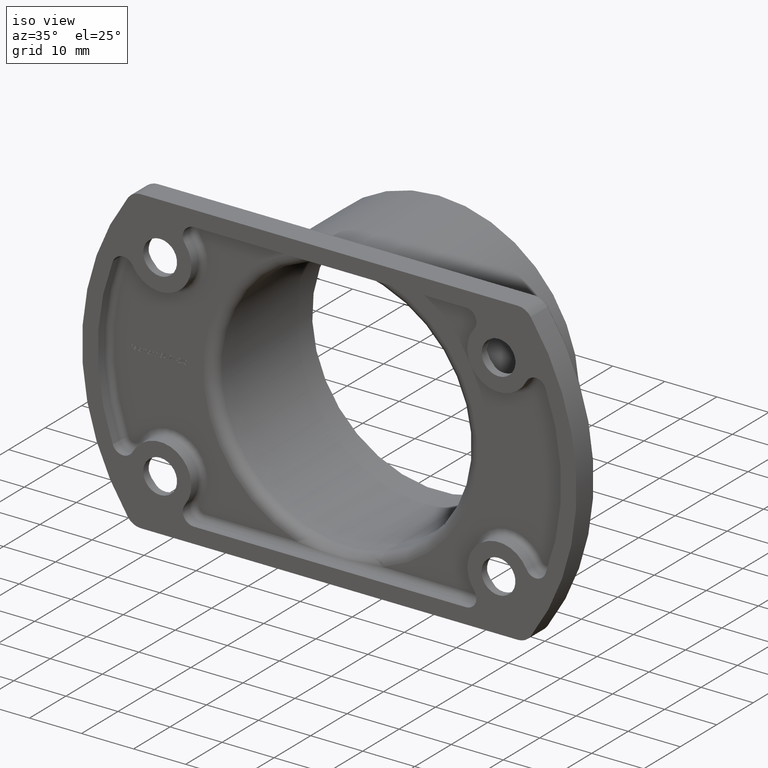
[diagram: clean part render]
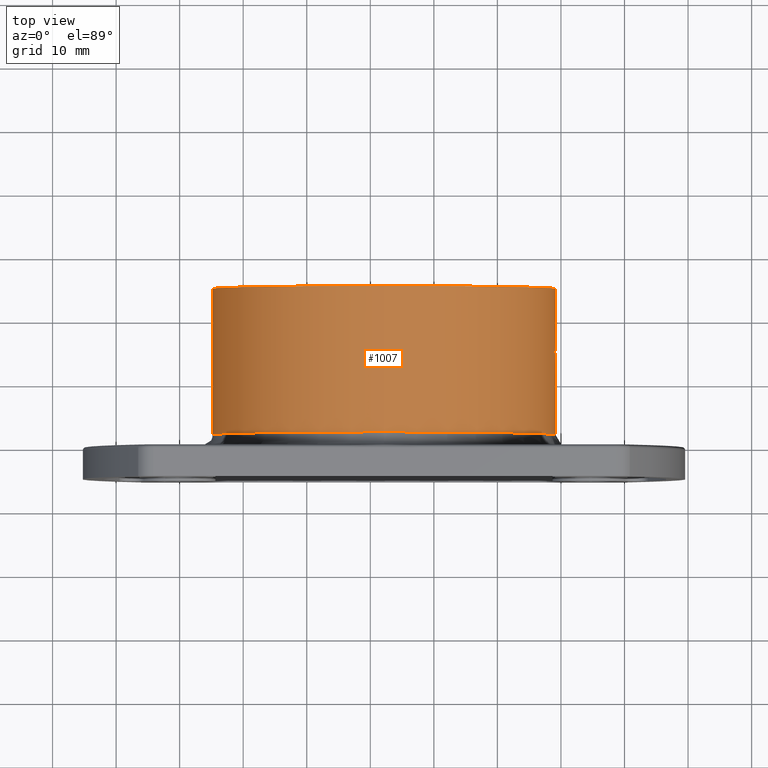
[diagram: tour spotlight — one face highlighted and labeled with its STEP entity id]
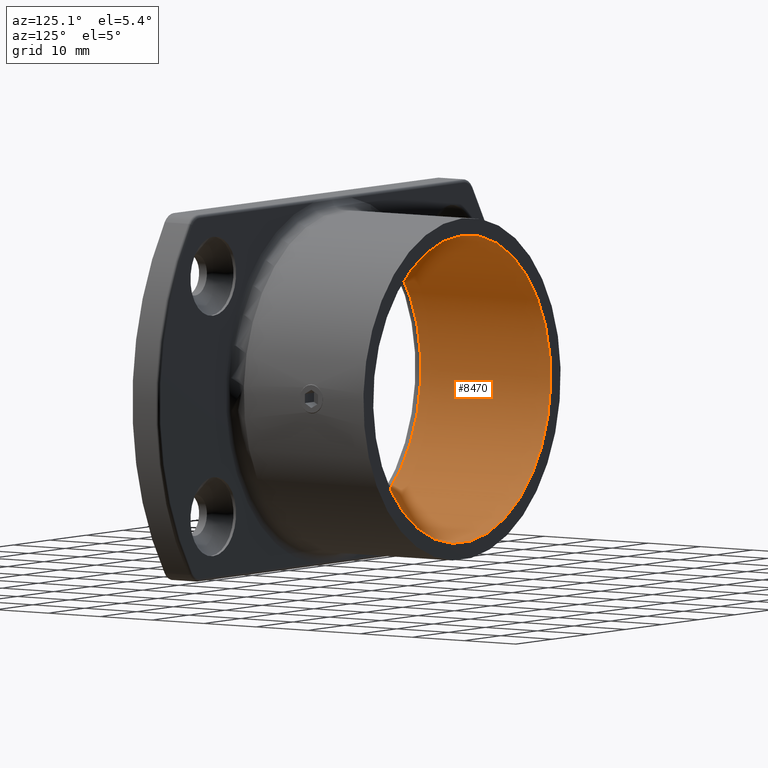
[diagram: tour spotlight — one face highlighted and labeled with its STEP entity id]
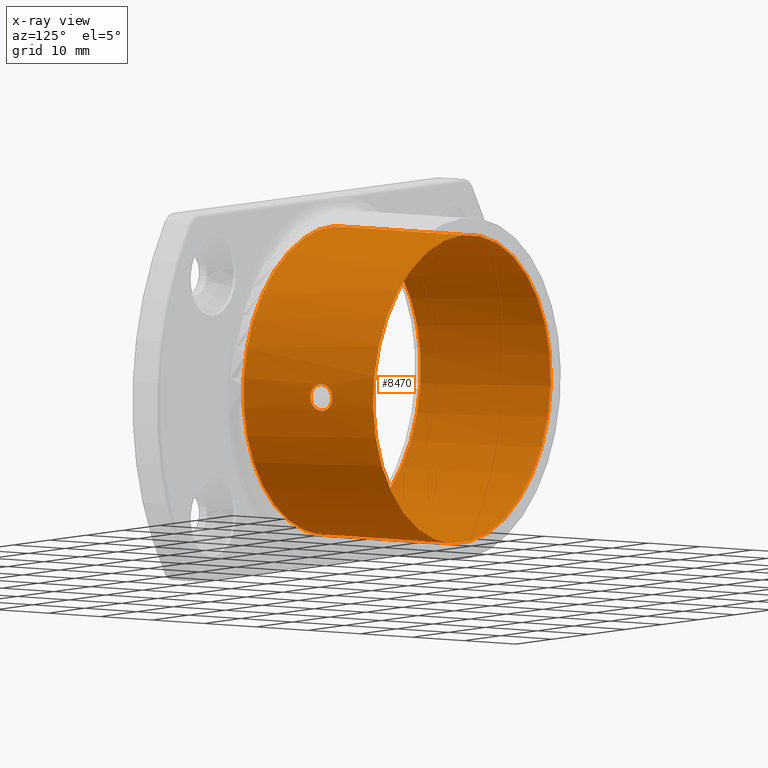
[diagram: x-ray of the same camera — body ghosted, this tour face saturated]
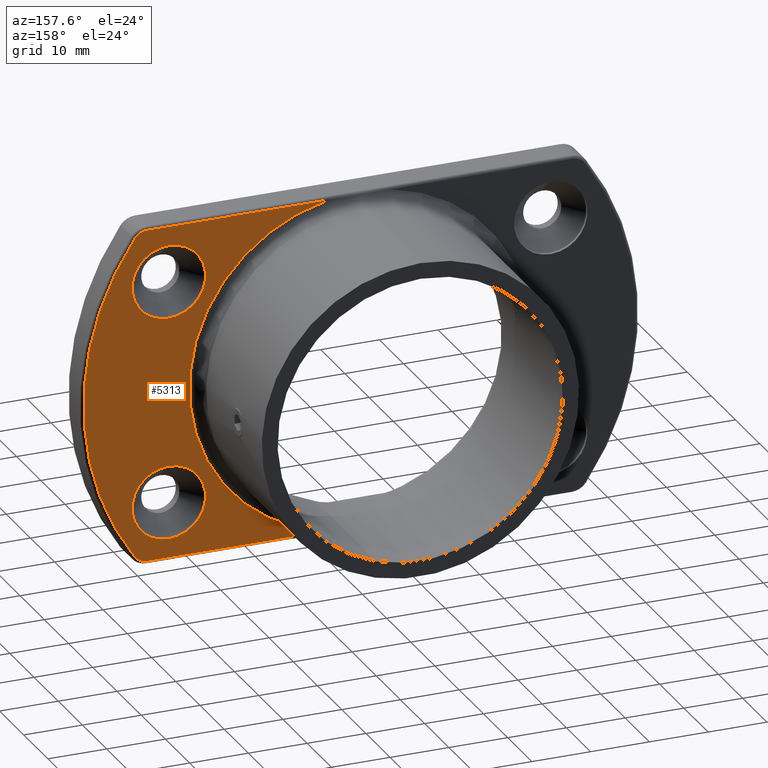
[diagram: tour spotlight — one face highlighted and labeled with its STEP entity id]
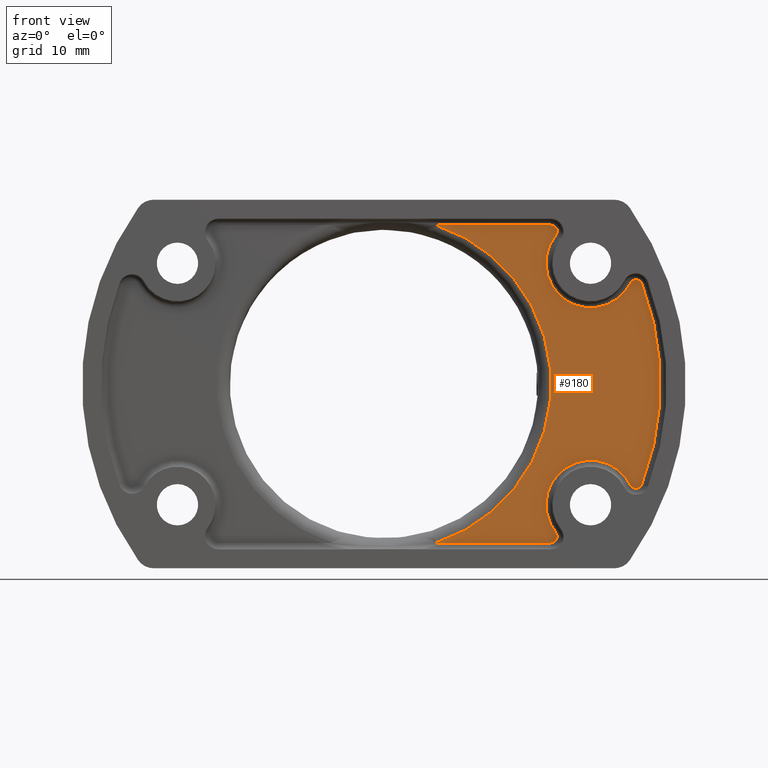
[diagram: tour spotlight — one face highlighted and labeled with its STEP entity id]
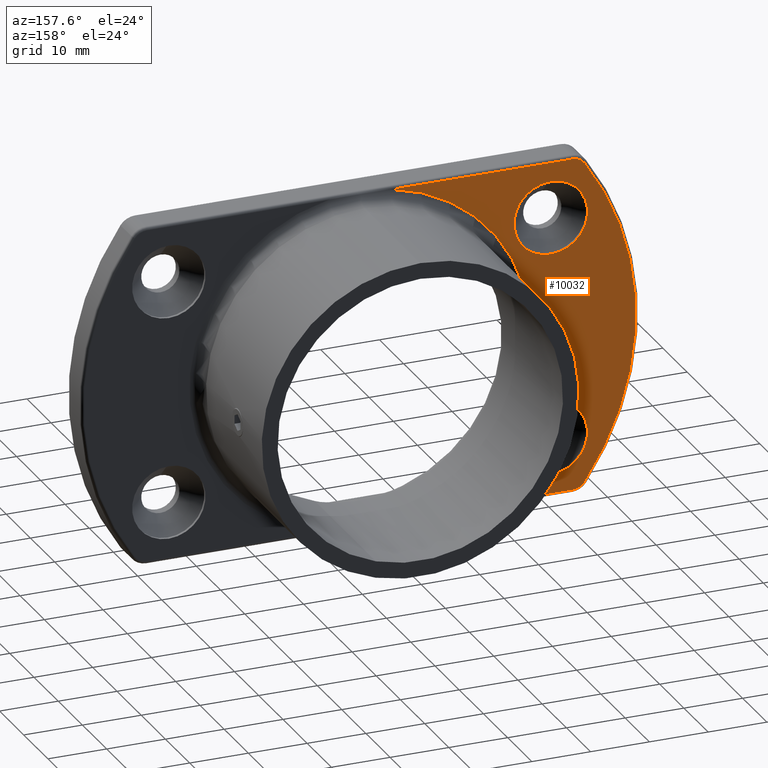
[diagram: tour spotlight — one face highlighted and labeled with its STEP entity id]
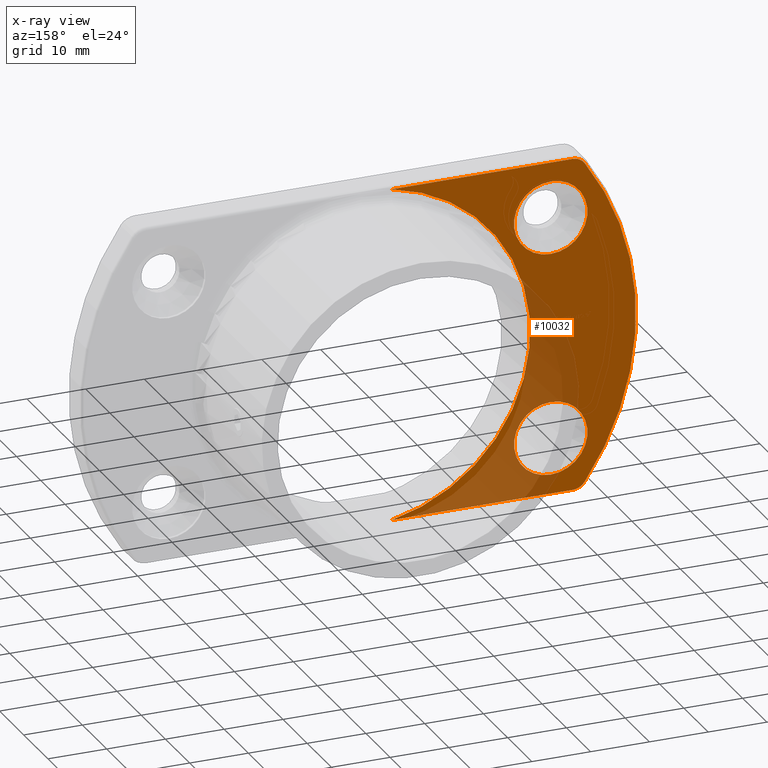
[diagram: x-ray of the same camera — body ghosted, this tour face saturated]
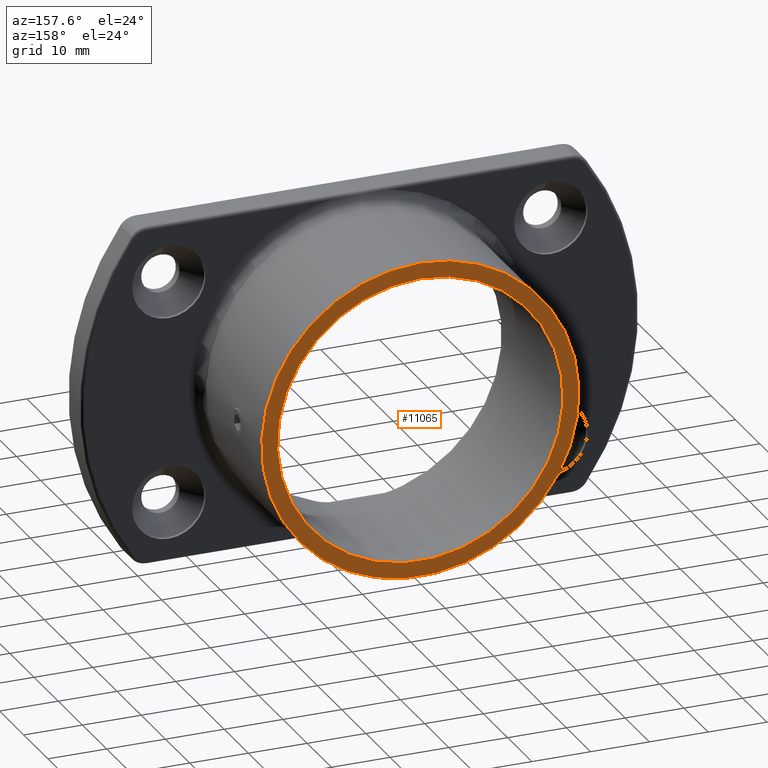
[diagram: tour spotlight — one face highlighted and labeled with its STEP entity id]
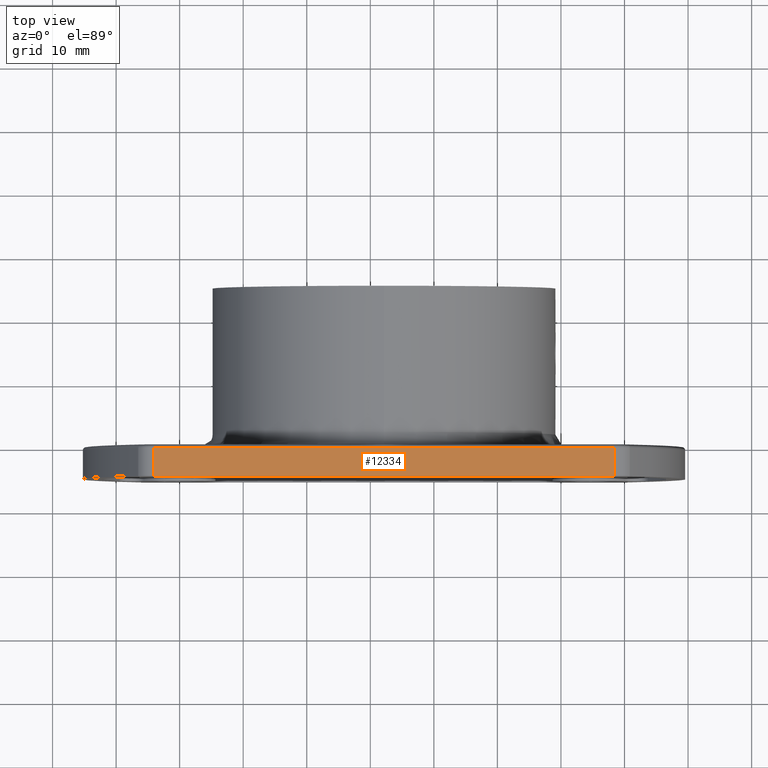
[diagram: tour spotlight — one face highlighted and labeled with its STEP entity id]
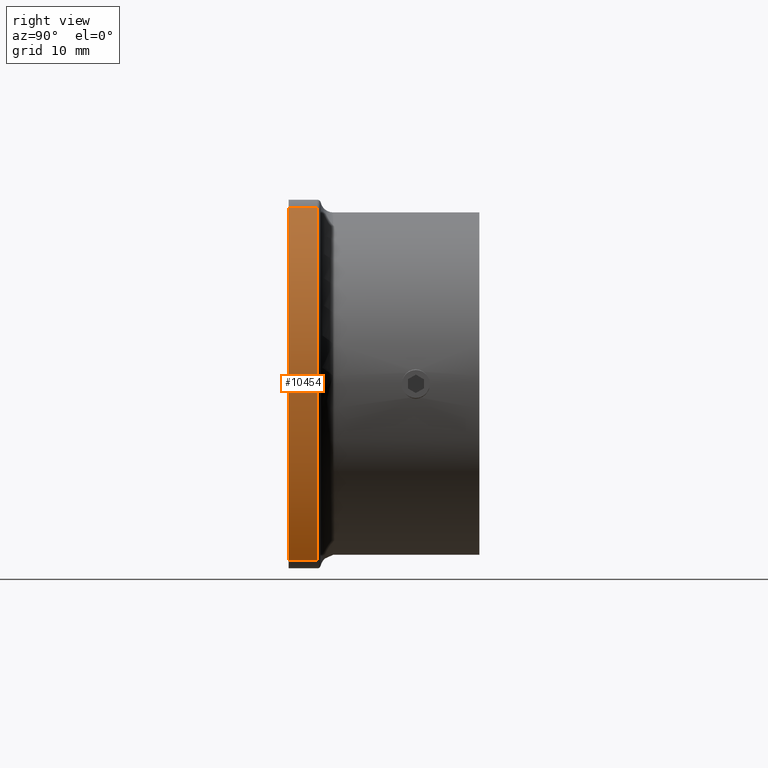
[diagram: tour spotlight — one face highlighted and labeled with its STEP entity id]
A machine part: a face-by-face anatomy tour. The part has 298 B-rep faces; the first image is the clean iso view, then the 8 largest visible faces are spotlighted one at a time (largest first), each with its STEP entity span.

Face 1 — top view, entity #1007. In plain terms, the highlighted cylindrical surface (bore or boss wall) has radius 27 mm, axis along (-0, -1, -0).
Definition (entity closure, byte-faithful):
#270 = EDGE_LOOP ( 'NONE', ( #13234 ) ) ;
#465 = CARTESIAN_POINT ( 'NONE',  ( 26.99489530747093724, 22.03348817706456586, -0.5418950037185219504 ) ) ;
#513 = CARTESIAN_POINT ( 'NONE',  ( 26.99894924719554012, 22.08661495192231783, -0.2734271451972120626 ) ) ;
#599 = CARTESIAN_POINT ( 'NONE',  ( 26.96457276148728610, 18.41641101813547010, 1.386168031315739402 ) ) ;
#642 = CARTESIAN_POINT ( 'NONE',  ( 26.97971547408401349, 18.17769491025235240, 1.052577347128794472 ) ) ;
#942 = B_SPLINE_CURVE_WITH_KNOTS ( 'NONE', 3,
 ( #12371, #8120, #7159, #9442, #8299, #8643, #12322, #10935, #2703, #9877, #13141, #8910, #10009, #7910, #7731, #5849, #11063, #7779, #642, #5760, #599, #4617, #12967, #1536, #7866, #5717, #13097, #3623, #11933, #4795, #6858, #1580, #5672, #10889, #4662, #13054, #6812, #3756, #8867, #1625, #2660, #6722, #513, #465, #12114, #1494, #9964, #11978, #3706, #8826, #2574, #4711, #6769, #11021, #13011, #8782 ),
 .UNSPECIFIED., .T., .F.,
 ( 4, 2, 2, 2, 2, 2, 2, 2, 2, 2, 2, 2, 2, 2, 2, 2, 2, 2, 2, 2, 2, 2, 2, 2, 2, 2, 2, 4 ),
 ( 0.000000000000000000, 0.0004104548176680663228, 0.0008209096353361326455, 0.001231364453004199023, 0.001641819270672265291, 0.002462728906008404984, 0.003283638541344545327, 0.003694093359012615065, 0.004104548176680685237, 0.004515002994348754975, 0.004925457812016824713, 0.005335912629684895318, 0.005746367447352965056, 0.006156822265021035662, 0.006567277082689105400, 0.007388186718025244876, 0.008209096353361386086, 0.008619551171029454090, 0.009030005988697523828, 0.009440460806365591831, 0.009850915624033661569, 0.01026137044170173131, 0.01067182525936980104, 0.01108228007703786905, 0.01149273489470593879, 0.01190318971237400852, 0.01231364453004207826, 0.01313455416537820733 ),
 .UNSPECIFIED. ) ;
#1007 = ADVANCED_FACE ( 'NONE', ( #6408, #10977, #4434 ), #4926, .T. ) ;
#1031 = AXIS2_PLACEMENT_3D ( 'NONE', #7787, #11115, #4849 ) ;
#1159 = ORIENTED_EDGE ( 'NONE', *, *, #5930, .F. ) ;
#1494 = CARTESIAN_POINT ( 'NONE',  ( 26.98428785042878530, 21.88800078750953659, -0.9297456666226994182 ) ) ;
#1536 = CARTESIAN_POINT ( 'NONE',  ( 26.93860456077279508, 18.94581199590946241, 1.821371444733868250 ) ) ;
#1580 = CARTESIAN_POINT ( 'NONE',  ( 26.93770346837608543, 21.05532679470998048, 1.836060337204566517 ) ) ;
#1625 = CARTESIAN_POINT ( 'NONE',  ( 26.99891201816530639, 22.08613630283335993, 0.2770751553091970742 ) ) ;
#2574 = CARTESIAN_POINT ( 'NONE',  ( 26.94855885723447386, 21.28371771187609340, -1.667662532398936026 ) ) ;
#2660 = CARTESIAN_POINT ( 'NONE',  ( 26.99998934516268534, 22.09986300916943947, 0.1406896496331681845 ) ) ;
#2703 = CARTESIAN_POINT ( 'NONE',  ( 26.95381029009437768, 18.61175124663264668, -1.581618412516103467 ) ) ;
#3623 = CARTESIAN_POINT ( 'NONE',  ( 26.91929881885153719, 19.72295519097643179, 2.086163671540484099 ) ) ;
#3650 = CARTESIAN_POINT ( 'NONE',  ( 0.000000000000000000, 30.00000000000000355, 0.000000000000000000 ) ) ;
#3706 = CARTESIAN_POINT ( 'NONE',  ( 26.96453585806439079, 21.58288774224685724, -1.386806462048881139 ) ) ;
#3748 = CARTESIAN_POINT ( 'NONE',  ( 26.91820945011016164, 20.00000000000000355, -2.099999999999997424 ) ) ;
#3756 = CARTESIAN_POINT ( 'NONE',  ( 26.99175954538224076, 21.99194772852731106, 0.6790148696380787774 ) ) ;
#4434 = FACE_OUTER_BOUND ( 'NONE', #6082, .T. ) ;
#4524 = VERTEX_POINT ( 'NONE', #7904 ) ;
#4617 = CARTESIAN_POINT ( 'NONE',  ( 26.95377477931694088, 18.61236002216624641, 1.582299328964676954 ) ) ;
#4662 = CARTESIAN_POINT ( 'NONE',  ( 26.96980109068491416, 21.66912320536398440, 1.281745513656271207 ) ) ;
#4692 = DIRECTION ( 'NONE',  ( -0.000000000000000000, -1.000000000000000000, -0.000000000000000000 ) ) ;
#4711 = CARTESIAN_POINT ( 'NONE',  ( 26.93861416629468764, 21.05453301629004770, -1.821260443568076592 ) ) ;
#4795 = CARTESIAN_POINT ( 'NONE',  ( 26.91820171872734235, 20.27337908987866655, 2.100099102379080929 ) ) ;
#4849 = DIRECTION ( 'NONE',  ( 0.000000000000000000, 0.000000000000000000, 1.000000000000000000 ) ) ;
#4926 = CYLINDRICAL_SURFACE ( 'NONE', #6291, 27.00000000000000000 ) ;
#5672 = CARTESIAN_POINT ( 'NONE',  ( 26.94839272786290962, 21.28969484472124662, 1.679777986236439036 ) ) ;
#5717 = CARTESIAN_POINT ( 'NONE',  ( 26.92642338924325074, 19.32291882473014866, 1.992616001073983734 ) ) ;
#5760 = CARTESIAN_POINT ( 'NONE',  ( 26.96987770432678744, 18.32965507635840297, 1.280102631773576638 ) ) ;
#5849 = CARTESIAN_POINT ( 'NONE',  ( 26.99484681521388296, 17.96715266656452670, 0.5444167237727990383 ) ) ;
#5930 = EDGE_CURVE ( 'NONE', #7633, #7633, #7647, .T. ) ;
#5975 = CARTESIAN_POINT ( 'NONE',  ( 0.000000000000000000, 30.00000000000000355, 27.00000000000000000 ) ) ;
#6082 = EDGE_LOOP ( 'NONE', ( #1159 ) ) ;
#6291 = AXIS2_PLACEMENT_3D ( 'NONE', #3650, #4692, #12009 ) ;
#6408 = FACE_BOUND ( 'NONE', #270, .T. ) ;
#6722 = CARTESIAN_POINT ( 'NONE',  ( 27.00001049768704320, 22.10013497032672802, -0.1365699132414570915 ) ) ;
#6769 = CARTESIAN_POINT ( 'NONE',  ( 26.93405119590239849, 20.93222786316125550, -1.886704887717988166 ) ) ;
#6812 = CARTESIAN_POINT ( 'NONE',  ( 26.98417333807383756, 21.88636770982384760, 0.9330240134683861486 ) ) ;
#6858 = CARTESIAN_POINT ( 'NONE',  ( 26.92263681444308787, 20.54974497348996465, 2.045143679454113794 ) ) ;
#7159 = CARTESIAN_POINT ( 'NONE',  ( 26.91928215537033608, 19.72474529368572860, -2.086375936908810846 ) ) ;
#7190 = EDGE_CURVE ( 'NONE', #4524, #4524, #10742, .T. ) ;
#7477 = DIRECTION ( 'NONE',  ( 0.000000000000000000, 1.000000000000000000, 0.000000000000000000 ) ) ;
#7633 = VERTEX_POINT ( 'NONE', #5975 ) ;
#7647 = CIRCLE ( 'NONE', #1031, 27.00000000000000000 ) ;
#7731 = CARTESIAN_POINT ( 'NONE',  ( 26.99893503663319194, 17.91356600475068817, 0.2750473298310570081 ) ) ;
#7779 = CARTESIAN_POINT ( 'NONE',  ( 26.98429029443402172, 18.11196576116818591, 0.9296558289991175839 ) ) ;
#7787 = CARTESIAN_POINT ( 'NONE',  ( 0.000000000000000000, 30.00000000000000355, 0.000000000000000000 ) ) ;
#7866 = CARTESIAN_POINT ( 'NONE',  ( 26.93402031654280648, 19.06854265097171464, 1.887152524991568825 ) ) ;
#7904 = CARTESIAN_POINT ( 'NONE',  ( 0.000000000000000000, 6.999999999999999112, 27.00000000000000000 ) ) ;
#7910 = CARTESIAN_POINT ( 'NONE',  ( 27.00000573439809060, 17.89992627201392494, 0.1358751182030369098 ) ) ;
#8120 = CARTESIAN_POINT ( 'NONE',  ( 26.91820945011016519, 19.86120773376729076, -2.099999999999998312 ) ) ;
#8299 = CARTESIAN_POINT ( 'NONE',  ( 26.92642419422319477, 19.32289506268997670, -1.992604597181023118 ) ) ;
#8450 = CARTESIAN_POINT ( 'NONE',  ( 0.000000000000000000, 6.999999999999999112, 0.000000000000000000 ) ) ;
#8643 = CARTESIAN_POINT ( 'NONE',  ( 26.93401830457162305, 19.06860682851944233, -1.887180684766553318 ) ) ;
#8736 = EDGE_CURVE ( 'NONE', #12539, #12539, #942, .T. ) ;
#8782 = CARTESIAN_POINT ( 'NONE',  ( 26.91820945011016875, 20.00000000000000711, -2.099999999999998312 ) ) ;
#8826 = CARTESIAN_POINT ( 'NONE',  ( 26.95386510891510312, 21.38931057481979892, -1.580690322115536617 ) ) ;
#8867 = CARTESIAN_POINT ( 'NONE',  ( 26.99482211249304697, 22.03251946965134067, 0.5455271956347832463 ) ) ;
#8910 = CARTESIAN_POINT ( 'NONE',  ( 26.99554900058556939, 17.95535295067944404, -0.5515711169293137095 ) ) ;
#9442 = CARTESIAN_POINT ( 'NONE',  ( 26.92336552557143747, 19.45628627345138639, -2.033003956470054607 ) ) ;
#9638 = AXIS2_PLACEMENT_3D ( 'NONE', #8450, #7477, #11682 ) ;
#9741 = EDGE_LOOP ( 'NONE', ( #11534 ) ) ;
#9877 = CARTESIAN_POINT ( 'NONE',  ( 26.96981034042656233, 18.32129466972492793, -1.291105739376129602 ) ) ;
#9964 = CARTESIAN_POINT ( 'NONE',  ( 26.97980149652758897, 21.82358131183717376, -1.050409844575534324 ) ) ;
#10009 = CARTESIAN_POINT ( 'NONE',  ( 26.99998845966673144, 17.90014837573508899, -0.2751545001780903998 ) ) ;
#10742 = CIRCLE ( 'NONE', #9638, 27.00000000000000000 ) ;
#10889 = CARTESIAN_POINT ( 'NONE',  ( 26.96438866763022446, 21.58038500479036870, 1.389649220314253419 ) ) ;
#10935 = CARTESIAN_POINT ( 'NONE',  ( 26.94839476663107902, 18.71977385817757167, -1.670284297200314239 ) ) ;
#10977 = FACE_OUTER_BOUND ( 'NONE', #9741, .T. ) ;
#11021 = CARTESIAN_POINT ( 'NONE',  ( 26.92271278934269674, 20.55335684588592571, -2.044165524091380082 ) ) ;
#11063 = CARTESIAN_POINT ( 'NONE',  ( 26.99185229455122226, 18.00680134367263463, 0.6753461066801554891 ) ) ;
#11115 = DIRECTION ( 'NONE',  ( 0.000000000000000000, 1.000000000000000000, 0.000000000000000000 ) ) ;
#11534 = ORIENTED_EDGE ( 'NONE', *, *, #7190, .T. ) ;
#11682 = DIRECTION ( 'NONE',  ( 0.000000000000000000, 0.000000000000000000, 1.000000000000000000 ) ) ;
#11933 = CARTESIAN_POINT ( 'NONE',  ( 26.91821333190374688, 19.86217013729808656, 2.099950242409720502 ) ) ;
#11978 = CARTESIAN_POINT ( 'NONE',  ( 26.96994734459377696, 21.67147233869162548, -1.278667221544275145 ) ) ;
#12009 = DIRECTION ( 'NONE',  ( 0.000000000000000000, 0.000000000000000000, -1.000000000000000000 ) ) ;
#12114 = CARTESIAN_POINT ( 'NONE',  ( 26.99185760310150073, 21.99327194455388579, -0.6751599316418830377 ) ) ;
#12322 = CARTESIAN_POINT ( 'NONE',  ( 26.93851676820820629, 18.94800943585449104, -1.822675083669150986 ) ) ;
#12371 = CARTESIAN_POINT ( 'NONE',  ( 26.91820945011016875, 20.00000000000000711, -2.099999999999998312 ) ) ;
#12539 = VERTEX_POINT ( 'NONE', #3748 ) ;
#12967 = CARTESIAN_POINT ( 'NONE',  ( 26.94845856443064847, 18.71847135610848056, 1.669248520306633399 ) ) ;
#13011 = CARTESIAN_POINT ( 'NONE',  ( 26.91820945011017940, 20.27758453246543269, -2.099999999999998757 ) ) ;
#13054 = CARTESIAN_POINT ( 'NONE',  ( 26.97967883558871449, 21.82177701025383598, 1.053552258491744498 ) ) ;
#13097 = CARTESIAN_POINT ( 'NONE',  ( 26.92341385366022521, 19.45381462574668419, 2.032366656785613124 ) ) ;
#13141 = CARTESIAN_POINT ( 'NONE',  ( 26.98049025699563330, 18.16485144440179411, -1.056902092065147958 ) ) ;
#13234 = ORIENTED_EDGE ( 'NONE', *, *, #8736, .T. ) ;

Face 2 — auxiliary view, entity #8470. An x-ray twin of the same camera follows (body ghosted, this face saturated) — the face is partly hidden behind the body. In plain terms, the highlighted cylindrical surface (bore or boss wall) has radius 24.3 mm, axis along (-0, -1, -0).
Definition (entity closure, byte-faithful):
#31 = CARTESIAN_POINT ( 'NONE',  ( 3.182198019210651818, 4.800177758596792188, 24.09914854790368111 ) ) ;
#118 = CARTESIAN_POINT ( 'NONE',  ( 24.21482301665022163, 19.45624605249468075, -2.032993795486853550 ) ) ;
#158 = CARTESIAN_POINT ( 'NONE',  ( 24.24264950457220635, 18.71974743281167974, -1.670263704858123255 ) ) ;
#192 = CARTESIAN_POINT ( 'NONE',  ( 6.316147013073845962, 4.977081440454631966, 23.47357358743090217 ) ) ;
#264 = CARTESIAN_POINT ( 'NONE',  ( 24.29998828283217804, 22.09986441556631576, 0.1407068751427635600 ) ) ;
#561 = CARTESIAN_POINT ( 'NONE',  ( 0.000000000000000000, 5.000000000000000888, 0.000000000000000000 ) ) ;
#617 = EDGE_CURVE ( 'NONE', #9639, #10271, #5107, .T. ) ;
#791 = FACE_BOUND ( 'NONE', #2065, .T. ) ;
#876 = CARTESIAN_POINT ( 'NONE',  ( 24.28253955964444089, 21.88798299928252078, -0.9297786522974380574 ) ) ;
#968 = CARTESIAN_POINT ( 'NONE',  ( 24.24283150079668303, 21.28373826326890139, -1.667648426281200802 ) ) ;
#984 = CARTESIAN_POINT ( 'NONE',  ( 0.000000000000000000, 5.000000000000000888, 0.000000000000000000 ) ) ;
#1012 = CARTESIAN_POINT ( 'NONE',  ( 24.23177472919944364, 21.05451945417314619, -1.821269865513938102 ) ) ;
#1123 = CARTESIAN_POINT ( 'NONE',  ( 24.20908055772671474, 20.27338657239205588, 2.100099654666883087 ) ) ;
#1137 = CARTESIAN_POINT ( 'NONE',  ( 24.26042585597478762, 21.58038482040486272, 1.389649170105824449 ) ) ;
#1205 = CARTESIAN_POINT ( 'NONE',  ( 24.24866867180806906, 18.61173881251580653, -1.581606259011125948 ) ) ;
#1245 = CARTESIAN_POINT ( 'NONE',  ( 24.21822430210994881, 19.32284762958202862, -1.992588327422756045 ) ) ;
#1833 = CARTESIAN_POINT ( 'NONE',  ( 0.000000000000000000, 30.00000000000000355, 0.000000000000000000 ) ) ;
#1912 = CARTESIAN_POINT ( 'NONE',  ( 24.21409804393266185, 20.55341296092485592, -2.044149398575916710 ) ) ;
#1923 = CARTESIAN_POINT ( 'NONE',  ( -2.551553241218464496, 4.765770112296586092, -24.17400174328698981 ) ) ;
#1967 = CARTESIAN_POINT ( 'NONE',  ( -0.6515112701628585912, 4.703903794189083776, -24.29961062710222208 ) ) ;
#2004 = CARTESIAN_POINT ( 'NONE',  ( 24.29432725970807283, 22.03347922522459612, -0.5419318630047107455 ) ) ;
#2065 = EDGE_LOOP ( 'NONE', ( #12781 ) ) ;
#2149 = CARTESIAN_POINT ( 'NONE',  ( 24.29881646398655448, 17.91356897378962287, 0.2750722870618316773 ) ) ;
#2192 = CARTESIAN_POINT ( 'NONE',  ( 24.29505345365439339, 17.95536664085897272, -0.5516199438102764585 ) ) ;
#2208 = CARTESIAN_POINT ( 'NONE',  ( 24.29084317816173311, 21.99194181707086315, 0.6790354377327811886 ) ) ;
#2237 = CARTESIAN_POINT ( 'NONE',  ( 24.29998712371101632, 17.90014899708022256, -0.2751860311236212220 ) ) ;
#2290 = CARTESIAN_POINT ( 'NONE',  ( 0.000000000000000000, 30.00000000000000355, 0.000000000000000000 ) ) ;
#2394 = FACE_OUTER_BOUND ( 'NONE', #13314, .T. ) ;
#2436 = B_SPLINE_CURVE_WITH_KNOTS ( 'NONE', 3,
 ( #6135, #12350, #3942, #13286, #8158, #6088, #1923, #7101, #1967, #4988, #13437, #3892, #8255, #9196, #4033, #12297 ),
 .UNSPECIFIED., .F., .F.,
 ( 4, 2, 2, 2, 2, 2, 2, 4 ),
 ( 0.000000000000000000, 0.001927224092068958745, 0.003854448184137917489, 0.005781672276206876668, 0.007708896368275834979, 0.009636120460344793290, 0.01156334455241375334, 0.01541779273655166649 ),
 .UNSPECIFIED. ) ;
#2760 = CIRCLE ( 'NONE', #11758, 24.30000000000000071 ) ;
#3085 = CARTESIAN_POINT ( 'NONE',  ( 24.27755422383554418, 21.82356642533245505, -1.050436908288565840 ) ) ;
#3147 = CARTESIAN_POINT ( 'NONE',  ( 2.551553241218466717, 4.765770112296586092, 24.17400174328698270 ) ) ;
#3166 = CARTESIAN_POINT ( 'NONE',  ( 24.24264659239087649, 21.28970061364107380, 1.679772696927010367 ) ) ;
#3188 = CARTESIAN_POINT ( 'NONE',  ( -7.545375956081393554, 5.000000000000000888, 23.09885931558934757 ) ) ;
#3193 = CARTESIAN_POINT ( 'NONE',  ( 24.23176618259682868, 18.94577905814844598, 1.821351896855918806 ) ) ;
#3229 = CARTESIAN_POINT ( 'NONE',  ( 1.286211244694491329, 4.717581605012741264, 24.27423417661690053 ) ) ;
#3276 = CARTESIAN_POINT ( 'NONE',  ( 24.22666912168216058, 19.06852135724468411, 1.887141079777067132 ) ) ;
#3357 = ORIENTED_EDGE ( 'NONE', *, *, #617, .T. ) ;
#3388 = EDGE_CURVE ( 'NONE', #8387, #8049, #2436, .T. ) ;
#3513 = DIRECTION ( 'NONE',  ( 0.000000000000000000, 0.000000000000000000, 1.000000000000000000 ) ) ;
#3569 = ORIENTED_EDGE ( 'NONE', *, *, #7405, .T. ) ;
#3680 = CARTESIAN_POINT ( 'NONE',  ( 24.28241190313680775, 21.88634507186492328, 0.9330721291215365865 ) ) ;
#3853 = DIRECTION ( 'NONE',  ( 0.000000000000000000, -1.000000000000000000, 0.000000000000000000 ) ) ;
#3865 = CIRCLE ( 'NONE', #10968, 24.30000000000000071 ) ;
#3892 = CARTESIAN_POINT ( 'NONE',  ( 2.543199008791807714, 4.765273990509507840, -24.17510349470515862 ) ) ;
#3942 = CARTESIAN_POINT ( 'NONE',  ( -6.316147013073837968, 4.977081440454632855, -23.47357358743090217 ) ) ;
#4025 = CARTESIAN_POINT ( 'NONE',  ( 24.26660185051124685, 21.67144272637757751, -1.278706932152204656 ) ) ;
#4033 = CARTESIAN_POINT ( 'NONE',  ( 6.319174856231853710, 5.000000000000006217, -23.49940499491131618 ) ) ;
#4115 = CARTESIAN_POINT ( 'NONE',  ( 24.24872976399702651, 21.38932525471570045, -1.580675256625905911 ) ) ;
#4222 = DIRECTION ( 'NONE',  ( 0.000000000000000000, 0.000000000000000000, -1.000000000000000000 ) ) ;
#4227 = CARTESIAN_POINT ( 'NONE',  ( 24.26062964199831029, 18.41642348880201396, 1.386182803664888441 ) ) ;
#4262 = CARTESIAN_POINT ( 'NONE',  ( -5.076348141159943594, 4.912003849170354819, 23.79825972456723449 ) ) ;
#4313 = CARTESIAN_POINT ( 'NONE',  ( 24.27745818055324278, 18.17771619158612140, 1.052612978507609265 ) ) ;
#4350 = CARTESIAN_POINT ( 'NONE',  ( 6.933861116415423353, 5.000000000000000000, 23.29861417382551636 ) ) ;
#4603 = CARTESIAN_POINT ( 'NONE',  ( 7.545375956081382895, 5.000000000000000888, -23.09885931558935113 ) ) ;
#4678 = CARTESIAN_POINT ( 'NONE',  ( 7.545375956081393554, 5.000000000000000888, 23.09885931558934757 ) ) ;
#4897 = DIRECTION ( 'NONE',  ( 0.000000000000000000, 0.000000000000000000, -1.000000000000000000 ) ) ;
#4983 = CARTESIAN_POINT ( 'NONE',  ( 24.20908920219840255, 20.27761091198066268, -2.099999999999997868 ) ) ;
#4988 = CARTESIAN_POINT ( 'NONE',  ( 0.6221345452106940010, 4.703503159986505366, -24.30038049437877845 ) ) ;
#5107 = B_SPLINE_CURVE_WITH_KNOTS ( 'NONE', 3,
 ( #6369, #4350, #192, #6234, #8390, #31, #3147, #3229, #8349, #7464, #10527, #5235, #12530, #4262, #5321, #3188 ),
 .UNSPECIFIED., .F., .F.,
 ( 4, 2, 2, 2, 2, 2, 2, 4 ),
 ( 0.000000000000000000, 0.001927224092068961780, 0.003854448184137923561, 0.005781672276206883607, 0.007708896368275843652, 0.009636120460344803698, 0.01156334455241376374, 0.01541779273655168730 ),
 .UNSPECIFIED. ) ;
#5170 = CARTESIAN_POINT ( 'NONE',  ( 24.29095044559412031, 21.99324506526220091, -0.6752349647758287832 ) ) ;
#5235 = CARTESIAN_POINT ( 'NONE',  ( -2.543199008791808602, 4.765273990509506952, 24.17510349470515507 ) ) ;
#5321 = CARTESIAN_POINT ( 'NONE',  ( -6.319174856231864368, 5.000000000000007994, 23.49940499491132329 ) ) ;
#5325 = CARTESIAN_POINT ( 'NONE',  ( 24.26652553355654618, 18.32966948161537601, 1.280120431944989479 ) ) ;
#5364 = VERTEX_POINT ( 'NONE', #6896 ) ;
#5368 = CARTESIAN_POINT ( 'NONE',  ( 24.29427339888953696, 17.96716137959229087, 0.5444504877595379710 ) ) ;
#5466 = CARTESIAN_POINT ( 'NONE',  ( 24.26644129825407248, 21.66912166547722052, 1.281744960892107432 ) ) ;
#6088 = CARTESIAN_POINT ( 'NONE',  ( -3.182198019210646489, 4.800177758596794853, -24.09914854790368821 ) ) ;
#6135 = CARTESIAN_POINT ( 'NONE',  ( -7.545375956081382895, 5.000000000000000888, -23.09885931558935113 ) ) ;
#6171 = CARTESIAN_POINT ( 'NONE',  ( 24.29883244368712525, 22.08661421542347369, -0.2734392428904455774 ) ) ;
#6234 = CARTESIAN_POINT ( 'NONE',  ( 5.067555137826514233, 4.914260905798454537, 23.77440335698002727 ) ) ;
#6329 = CARTESIAN_POINT ( 'NONE',  ( 24.21028218668753595, 19.72472161949362146, -2.086373394467406772 ) ) ;
#6369 = CARTESIAN_POINT ( 'NONE',  ( 7.545375956081393554, 5.000000000000000888, 23.09885931558934757 ) ) ;
#6374 = CARTESIAN_POINT ( 'NONE',  ( 24.20908920219842386, 19.86119454400967399, -2.099999999999997424 ) ) ;
#6414 = CARTESIAN_POINT ( 'NONE',  ( 24.21030064145450567, 19.72293534695117145, 2.086161999650231191 ) ) ;
#6499 = CARTESIAN_POINT ( 'NONE',  ( 24.30001154619184334, 22.10013360599681320, -0.1366302508120904591 ) ) ;
#6514 = CARTESIAN_POINT ( 'NONE',  ( 24.27741717810187083, 21.82175154512096071, 1.053593178977151101 ) ) ;
#6603 = DIRECTION ( 'NONE',  ( 0.000000000000000000, 1.000000000000000000, 0.000000000000000000 ) ) ;
#6675 = CARTESIAN_POINT ( 'NONE',  ( -7.545375956081393554, 5.000000000000000888, 23.09885931558934757 ) ) ;
#6684 = CARTESIAN_POINT ( 'NONE',  ( -7.545375956081382895, 5.000000000000000888, -23.09885931558935113 ) ) ;
#6704 = EDGE_LOOP ( 'NONE', ( #12468, #3357, #3569, #9510 ) ) ;
#6896 = CARTESIAN_POINT ( 'NONE',  ( 24.20908920219842031, 20.00000000000000355, -2.099999999999997424 ) ) ;
#7101 = CARTESIAN_POINT ( 'NONE',  ( -1.286211244694487776, 4.717581605012740376, -24.27423417661690408 ) ) ;
#7113 = DIRECTION ( 'NONE',  ( -0.000000000000000000, -1.000000000000000000, -0.000000000000000000 ) ) ;
#7273 = CARTESIAN_POINT ( 'NONE',  ( 24.22670422886575636, 20.93227048058801643, -1.886683576617622649 ) ) ;
#7380 = CARTESIAN_POINT ( 'NONE',  ( 24.23166870496817538, 18.94797345014916345, -1.822654003909574216 ) ) ;
#7405 = EDGE_CURVE ( 'NONE', #10271, #8387, #3865, .T. ) ;
#7427 = CARTESIAN_POINT ( 'NONE',  ( 24.20908920219841320, 20.00000000000000355, -2.099999999999997424 ) ) ;
#7464 = CARTESIAN_POINT ( 'NONE',  ( -0.6221345452106924467, 4.703503159986506255, 24.30038049437878200 ) ) ;
#8049 = VERTEX_POINT ( 'NONE', #4603 ) ;
#8158 = CARTESIAN_POINT ( 'NONE',  ( -4.439775297161756562, 4.874415147473389887, -23.89945062711920087 ) ) ;
#8255 = CARTESIAN_POINT ( 'NONE',  ( 3.181245271803539332, 4.800116283381880677, -24.09935263887148338 ) ) ;
#8310 = CIRCLE ( 'NONE', #11813, 24.30000000000000071 ) ;
#8349 = CARTESIAN_POINT ( 'NONE',  ( 0.6515112701628603675, 4.703903794189083776, 24.29961062710222208 ) ) ;
#8387 = VERTEX_POINT ( 'NONE', #6684 ) ;
#8390 = CARTESIAN_POINT ( 'NONE',  ( 4.439775297161764556, 4.874415147473387222, 23.89945062711921153 ) ) ;
#8441 = CARTESIAN_POINT ( 'NONE',  ( 24.26645097395125461, 18.32131302817495921, -1.291123535335682471 ) ) ;
#8470 = ADVANCED_FACE ( 'NONE', ( #12830, #2394, #791 ), #11205, .F. ) ;
#8483 = CARTESIAN_POINT ( 'NONE',  ( 24.22666759209629461, 19.06856583518591819, -1.887160293128594235 ) ) ;
#8524 = CARTESIAN_POINT ( 'NONE',  ( 24.20909354253719314, 19.86216008132023347, 2.099949963973523737 ) ) ;
#8948 = CARTESIAN_POINT ( 'NONE',  ( 0.000000000000000000, 30.00000000000000355, 24.30000000000000071 ) ) ;
#9157 = ORIENTED_EDGE ( 'NONE', *, *, #11270, .T. ) ;
#9196 = CARTESIAN_POINT ( 'NONE',  ( 5.076348141159933824, 4.912003849170358372, -23.79825972456723093 ) ) ;
#9211 = DIRECTION ( 'NONE',  ( 0.000000000000000000, 0.000000000000000000, -1.000000000000000000 ) ) ;
#9330 = CARTESIAN_POINT ( 'NONE',  ( 24.20908920219841320, 20.00000000000000355, -2.099999999999997424 ) ) ;
#9440 = DIRECTION ( 'NONE',  ( 0.000000000000000000, -1.000000000000000000, 0.000000000000000000 ) ) ;
#9443 = CARTESIAN_POINT ( 'NONE',  ( 24.29094568270052790, 18.00681408292829033, 0.6753856505584672210 ) ) ;
#9477 = CARTESIAN_POINT ( 'NONE',  ( 24.30000639807662566, 17.89992596510240119, 0.1358839375941323646 ) ) ;
#9510 = ORIENTED_EDGE ( 'NONE', *, *, #3388, .T. ) ;
#9516 = CARTESIAN_POINT ( 'NONE',  ( 24.24862716071311297, 18.61238221405001525, 1.582319251007672900 ) ) ;
#9639 = VERTEX_POINT ( 'NONE', #4678 ) ;
#10044 = CARTESIAN_POINT ( 'NONE',  ( 24.23076479316292975, 21.05536530530998363, 1.836038649882324680 ) ) ;
#10271 = VERTEX_POINT ( 'NONE', #6675 ) ;
#10489 = CARTESIAN_POINT ( 'NONE',  ( 24.21401302496981600, 20.54978199268050787, 2.045134130573837972 ) ) ;
#10527 = CARTESIAN_POINT ( 'NONE',  ( -1.261081103982243157, 4.716807234068996380, 24.27577320348837731 ) ) ;
#10580 = CARTESIAN_POINT ( 'NONE',  ( 24.21487689177618563, 19.45376693963740777, 2.032354829876081403 ) ) ;
#10968 = AXIS2_PLACEMENT_3D ( 'NONE', #561, #3853, #4897 ) ;
#11205 = CYLINDRICAL_SURFACE ( 'NONE', #12367, 24.30000000000000071 ) ;
#11210 = B_SPLINE_CURVE_WITH_KNOTS ( 'NONE', 3,
 ( #7427, #6374, #6329, #118, #1245, #8483, #7380, #158, #1205, #8441, #11546, #2192, #2237, #9477, #2149, #5368, #9443, #11587, #4313, #5325, #4227, #9516, #12615, #3193, #3276, #12661, #10580, #6414, #8524, #1123, #10489, #10044, #3166, #1137, #5466, #6514, #3680, #2208, #11358, #11612, #264, #6499, #6171, #2004, #5170, #876, #3085, #4025, #11341, #4115, #968, #1012, #7273, #1912, #4983, #9330 ),
 .UNSPECIFIED., .T., .F.,
 ( 4, 2, 2, 2, 2, 2, 2, 2, 2, 2, 2, 2, 2, 2, 2, 2, 2, 2, 2, 2, 2, 2, 2, 2, 2, 2, 2, 4 ),
 ( 0.000000000000000000, 0.0004104909566373880206, 0.0008209819132747760411, 0.001231472869912163736, 0.001641963826549551215, 0.002462945739824333978, 0.003283927653099116308, 0.003694418609736507906, 0.004104909566373898637, 0.004515400523011289802, 0.004925891479648680966, 0.005336382436286071264, 0.005746873392923462429, 0.006157364349560853593, 0.006567855306198244758, 0.007388837219473027088, 0.008209819132747811152, 0.008620310089385199714, 0.009030801046022586542, 0.009441292002659973370, 0.009851782959297360198, 0.01026227391593474703, 0.01067276487257213212, 0.01108325582920952242, 0.01149374678584690924, 0.01190423774248429781, 0.01231472869912168464, 0.01313571061239645135 ),
 .UNSPECIFIED. ) ;
#11270 = EDGE_CURVE ( 'NONE', #11728, #11728, #2760, .T. ) ;
#11341 = CARTESIAN_POINT ( 'NONE',  ( 24.26058820548570694, 21.58286751567796102, -1.386827082988963289 ) ) ;
#11358 = CARTESIAN_POINT ( 'NONE',  ( 24.29424583337045718, 22.03250935687051992, 0.5455652831788998514 ) ) ;
#11535 = EDGE_CURVE ( 'NONE', #5364, #5364, #11210, .T. ) ;
#11546 = CARTESIAN_POINT ( 'NONE',  ( 24.27831926952105945, 18.16487335309377826, -1.056939130478322442 ) ) ;
#11587 = CARTESIAN_POINT ( 'NONE',  ( 24.28254159597485540, 18.11199197555865936, 0.9297104800089014409 ) ) ;
#11612 = CARTESIAN_POINT ( 'NONE',  ( 24.29879074332019684, 22.08613165001439782, 0.2771109936190236933 ) ) ;
#11728 = VERTEX_POINT ( 'NONE', #8948 ) ;
#11758 = AXIS2_PLACEMENT_3D ( 'NONE', #2290, #6603, #3513 ) ;
#11813 = AXIS2_PLACEMENT_3D ( 'NONE', #984, #9440, #4222 ) ;
#12297 = CARTESIAN_POINT ( 'NONE',  ( 7.545375956081382895, 5.000000000000000888, -23.09885931558935113 ) ) ;
#12350 = CARTESIAN_POINT ( 'NONE',  ( -6.933861116415413584, 5.000000000000000888, -23.29861417382551281 ) ) ;
#12367 = AXIS2_PLACEMENT_3D ( 'NONE', #1833, #7113, #9211 ) ;
#12468 = ORIENTED_EDGE ( 'NONE', *, *, #13438, .T. ) ;
#12530 = CARTESIAN_POINT ( 'NONE',  ( -3.181245271803545105, 4.800116283381874460, 24.09935263887148338 ) ) ;
#12615 = CARTESIAN_POINT ( 'NONE',  ( 24.24272008839171022, 18.71845142491361003, 1.669232690823260201 ) ) ;
#12661 = CARTESIAN_POINT ( 'NONE',  ( 24.21822344006801231, 19.32287200360565294, 1.992599205407457053 ) ) ;
#12781 = ORIENTED_EDGE ( 'NONE', *, *, #11535, .F. ) ;
#12830 = FACE_OUTER_BOUND ( 'NONE', #6704, .T. ) ;
#13286 = CARTESIAN_POINT ( 'NONE',  ( -5.067555137826503575, 4.914260905798454537, -23.77440335698003437 ) ) ;
#13314 = EDGE_LOOP ( 'NONE', ( #9157 ) ) ;
#13437 = CARTESIAN_POINT ( 'NONE',  ( 1.261081103982242713, 4.716807234068995491, -24.27577320348837375 ) ) ;
#13438 = EDGE_CURVE ( 'NONE', #8049, #9639, #8310, .T. ) ;

Face 3 — auxiliary view, entity #5313. In plain terms, the highlighted planar face has unit normal (0, 1, 0).
Definition (entity closure, byte-faithful):
#5 = EDGE_LOOP ( 'NONE', ( #9677, #11622, #7310, #5605, #170, #3427 ) ) ;
#170 = ORIENTED_EDGE ( 'NONE', *, *, #2759, .T. ) ;
#596 = CARTESIAN_POINT ( 'NONE',  ( 32.50000000000000000, 5.000000000000000000, -19.00000000000000000 ) ) ;
#814 = FACE_BOUND ( 'NONE', #8432, .T. ) ;
#897 = CARTESIAN_POINT ( 'NONE',  ( 36.22873534441389864, 5.000000000000000000, 26.00000000000000355 ) ) ;
#935 = AXIS2_PLACEMENT_3D ( 'NONE', #1841, #5013, #9027 ) ;
#1128 = DIRECTION ( 'NONE',  ( -0.000000000000000000, 1.000000000000000000, -0.000000000000000000 ) ) ;
#1161 = CIRCLE ( 'NONE', #11113, 6.249999999999998224 ) ;
#1304 = DIRECTION ( 'NONE',  ( 0.000000000000000000, 0.000000000000000000, 1.000000000000000000 ) ) ;
#1419 = EDGE_CURVE ( 'NONE', #6727, #5123, #4266, .T. ) ;
#1791 = CIRCLE ( 'NONE', #11982, 2.499999999999998668 ) ;
#1841 = CARTESIAN_POINT ( 'NONE',  ( 0.5000000000000073275, 5.000000000000000000, -3.122502256758252770E-14 ) ) ;
#1984 = CIRCLE ( 'NONE', #2034, 28.99999999999999645 ) ;
#2034 = AXIS2_PLACEMENT_3D ( 'NONE', #11819, #5467, #1304 ) ;
#2161 = EDGE_CURVE ( 'NONE', #4476, #7099, #7203, .T. ) ;
#2201 = DIRECTION ( 'NONE',  ( 1.000000000000000000, -0.000000000000000000, 0.000000000000000000 ) ) ;
#2282 = LINE ( 'NONE', #11846, #11751 ) ;
#2412 = VERTEX_POINT ( 'NONE', #7040 ) ;
#2573 = DIRECTION ( 'NONE',  ( -0.000000000000000000, 1.000000000000000000, -0.000000000000000000 ) ) ;
#2759 = EDGE_CURVE ( 'NONE', #11795, #4476, #1984, .T. ) ;
#2772 = DIRECTION ( 'NONE',  ( 0.000000000000000000, 0.000000000000000000, 1.000000000000000000 ) ) ;
#2934 = CARTESIAN_POINT ( 'NONE',  ( 36.22873534441389864, 5.000000000000000000, 28.50000000000000000 ) ) ;
#3071 = DIRECTION ( 'NONE',  ( 0.000000000000000000, 0.000000000000000000, 1.000000000000000000 ) ) ;
#3228 = ORIENTED_EDGE ( 'NONE', *, *, #13059, .F. ) ;
#3234 = EDGE_CURVE ( 'NONE', #6727, #11795, #2282, .T. ) ;
#3427 = ORIENTED_EDGE ( 'NONE', *, *, #2161, .T. ) ;
#4085 = EDGE_CURVE ( 'NONE', #12168, #7099, #1791, .T. ) ;
#4266 = CIRCLE ( 'NONE', #9697, 2.499999999999998668 ) ;
#4476 = VERTEX_POINT ( 'NONE', #5472 ) ;
#4848 = VERTEX_POINT ( 'NONE', #5837 ) ;
#4976 = CARTESIAN_POINT ( 'NONE',  ( 36.22873534441392707, 5.000000000000000000, -26.00000000000000355 ) ) ;
#5013 = DIRECTION ( 'NONE',  ( 0.000000000000000000, 1.000000000000000000, 0.000000000000000000 ) ) ;
#5123 = VERTEX_POINT ( 'NONE', #6532 ) ;
#5313 = ADVANCED_FACE ( 'NONE', ( #814, #6330, #11568 ), #11177, .T. ) ;
#5467 = DIRECTION ( 'NONE',  ( -0.000000000000000000, -1.000000000000000000, -0.000000000000000000 ) ) ;
#5472 = CARTESIAN_POINT ( 'NONE',  ( 5.361902647381782572, 5.000000000000000000, 28.50000000000000000 ) ) ;
#5489 = EDGE_CURVE ( 'NONE', #12168, #5123, #9583, .T. ) ;
#5605 = ORIENTED_EDGE ( 'NONE', *, *, #3234, .T. ) ;
#5837 = CARTESIAN_POINT ( 'NONE',  ( 32.50000000000000000, 5.000000000000000000, 25.24999999999999645 ) ) ;
#6022 = DIRECTION ( 'NONE',  ( -2.775557561562892929E-15, 0.000000000000000000, 1.000000000000000000 ) ) ;
#6246 = DIRECTION ( 'NONE',  ( 0.000000000000000000, 0.000000000000000000, 1.000000000000000000 ) ) ;
#6330 = FACE_BOUND ( 'NONE', #10476, .T. ) ;
#6402 = CARTESIAN_POINT ( 'NONE',  ( 36.22873534441392707, 5.000000000000000000, -28.50000000000000000 ) ) ;
#6478 = CARTESIAN_POINT ( 'NONE',  ( 5.361902647381800335, 5.000000000000000000, -28.50000000000000000 ) ) ;
#6532 = CARTESIAN_POINT ( 'NONE',  ( 38.26922064132581625, 5.000000000000000000, -27.44444444444445352 ) ) ;
#6727 = VERTEX_POINT ( 'NONE', #6402 ) ;
#6770 = ORIENTED_EDGE ( 'NONE', *, *, #10254, .F. ) ;
#7040 = CARTESIAN_POINT ( 'NONE',  ( 32.50000000000000000, 5.000000000000000000, -12.75000000000000178 ) ) ;
#7099 = VERTEX_POINT ( 'NONE', #2934 ) ;
#7203 = LINE ( 'NONE', #10496, #9154 ) ;
#7310 = ORIENTED_EDGE ( 'NONE', *, *, #1419, .F. ) ;
#7699 = AXIS2_PLACEMENT_3D ( 'NONE', #9223, #13412, #3071 ) ;
#8173 = DIRECTION ( 'NONE',  ( -0.000000000000000000, -1.000000000000000000, -0.000000000000000000 ) ) ;
#8432 = EDGE_LOOP ( 'NONE', ( #3228 ) ) ;
#8992 = DIRECTION ( 'NONE',  ( -0.000000000000000000, -1.000000000000000000, -0.000000000000000000 ) ) ;
#9027 = DIRECTION ( 'NONE',  ( 0.000000000000000000, -0.000000000000000000, 1.000000000000000000 ) ) ;
#9154 = VECTOR ( 'NONE', #2201, 1000.000000000000000 ) ;
#9223 = CARTESIAN_POINT ( 'NONE',  ( -0.4999999999999865663, 5.000000000000000000, -2.081668171171956783E-14 ) ) ;
#9583 = CIRCLE ( 'NONE', #7699, 47.49999999999999289 ) ;
#9677 = ORIENTED_EDGE ( 'NONE', *, *, #4085, .F. ) ;
#9697 = AXIS2_PLACEMENT_3D ( 'NONE', #4976, #8992, #6022 ) ;
#10254 = EDGE_CURVE ( 'NONE', #2412, #2412, #12510, .T. ) ;
#10476 = EDGE_LOOP ( 'NONE', ( #6770 ) ) ;
#10496 = CARTESIAN_POINT ( 'NONE',  ( 37.74918299781054998, 5.000000000000000000, 28.50000000000000000 ) ) ;
#10844 = DIRECTION ( 'NONE',  ( 0.000000000000000000, 0.000000000000000000, 1.000000000000000000 ) ) ;
#11113 = AXIS2_PLACEMENT_3D ( 'NONE', #11418, #1128, #6246 ) ;
#11177 = PLANE ( 'NONE',  #935 ) ;
#11335 = AXIS2_PLACEMENT_3D ( 'NONE', #596, #2573, #10844 ) ;
#11418 = CARTESIAN_POINT ( 'NONE',  ( 32.50000000000000000, 5.000000000000000000, 19.00000000000000000 ) ) ;
#11568 = FACE_OUTER_BOUND ( 'NONE', #5, .T. ) ;
#11622 = ORIENTED_EDGE ( 'NONE', *, *, #5489, .T. ) ;
#11751 = VECTOR ( 'NONE', #12878, 1000.000000000000000 ) ;
#11795 = VERTEX_POINT ( 'NONE', #6478 ) ;
#11819 = CARTESIAN_POINT ( 'NONE',  ( 0.000000000000000000, 5.000000000000000000, 0.000000000000000000 ) ) ;
#11846 = CARTESIAN_POINT ( 'NONE',  ( 0.5000000000000073275, 5.000000000000000000, -28.50000000000000000 ) ) ;
#11982 = AXIS2_PLACEMENT_3D ( 'NONE', #897, #8173, #2772 ) ;
#11992 = CARTESIAN_POINT ( 'NONE',  ( 38.26922064132578072, 5.000000000000000000, 27.44444444444444997 ) ) ;
#12168 = VERTEX_POINT ( 'NONE', #11992 ) ;
#12510 = CIRCLE ( 'NONE', #11335, 6.249999999999998224 ) ;
#12878 = DIRECTION ( 'NONE',  ( -1.000000000000000000, 0.000000000000000000, -0.000000000000000000 ) ) ;
#13059 = EDGE_CURVE ( 'NONE', #4848, #4848, #1161, .T. ) ;
#13412 = DIRECTION ( 'NONE',  ( 0.000000000000000000, 1.000000000000000000, 0.000000000000000000 ) ) ;

Face 4 — front view, entity #9180. In plain terms, the highlighted planar face has unit normal (0, -1, 0).
Definition (entity closure, byte-faithful):
#17 = DIRECTION ( 'NONE',  ( -8.881784197001252323E-16, 0.000000000000000000, -1.000000000000000000 ) ) ;
#20 = CIRCLE ( 'NONE', #12693, 7.000000000000006217 ) ;
#35 = CIRCLE ( 'NONE', #8262, 1.000000000000000888 ) ;
#128 = VERTEX_POINT ( 'NONE', #600 ) ;
#155 = VERTEX_POINT ( 'NONE', #3583 ) ;
#259 = CARTESIAN_POINT ( 'NONE',  ( 8.166394553289741509, 3.000000000000000000, 24.99999999999999645 ) ) ;
#538 = VERTEX_POINT ( 'NONE', #9255 ) ;
#600 = CARTESIAN_POINT ( 'NONE',  ( 27.03562675140139504, 3.000000000000000000, 23.37500000000000711 ) ) ;
#606 = DIRECTION ( 'NONE',  ( 0.000000000000000000, 0.000000000000000000, -1.000000000000000000 ) ) ;
#862 = VERTEX_POINT ( 'NONE', #1402 ) ;
#953 = CARTESIAN_POINT ( 'NONE',  ( 32.50000000000000000, 3.000000000000000000, 19.00000000000000000 ) ) ;
#971 = EDGE_CURVE ( 'NONE', #4400, #155, #1858, .T. ) ;
#1310 = EDGE_CURVE ( 'NONE', #538, #4400, #11303, .T. ) ;
#1402 = CARTESIAN_POINT ( 'NONE',  ( 26.25500200160159991, 3.000000000000000000, 25.00000000000000355 ) ) ;
#1526 = CARTESIAN_POINT ( 'NONE',  ( 39.64621427882822502, 3.000000000000000000, -15.40394362098259151 ) ) ;
#1595 = CIRCLE ( 'NONE', #11398, 0.9999999999999974465 ) ;
#1611 = DIRECTION ( 'NONE',  ( 0.000000000000000000, -1.000000000000000000, 0.000000000000000000 ) ) ;
#1858 = CIRCLE ( 'NONE', #11466, 0.9999999999999956701 ) ;
#1916 = EDGE_CURVE ( 'NONE', #155, #128, #7681, .T. ) ;
#2092 = DIRECTION ( 'NONE',  ( -0.000000000000000000, 1.000000000000000000, -0.000000000000000000 ) ) ;
#2231 = ORIENTED_EDGE ( 'NONE', *, *, #5905, .T. ) ;
#2302 = DIRECTION ( 'NONE',  ( -0.000000000000000000, 1.000000000000000000, -0.000000000000000000 ) ) ;
#2748 = CARTESIAN_POINT ( 'NONE',  ( -32.50000000000000000, 3.000000000000000000, 24.99999999999999645 ) ) ;
#2831 = DIRECTION ( 'NONE',  ( 0.000000000000000000, 0.000000000000000000, -1.000000000000000000 ) ) ;
#2894 = DIRECTION ( 'NONE',  ( -1.000000000000000000, 0.000000000000000000, 0.000000000000000000 ) ) ;
#3218 = CARTESIAN_POINT ( 'NONE',  ( 32.50000000000000000, 3.000000000000000000, -19.00000000000000000 ) ) ;
#3583 = CARTESIAN_POINT ( 'NONE',  ( 38.75293749397469156, 3.000000000000000000, 15.85345066835976091 ) ) ;
#3815 = DIRECTION ( 'NONE',  ( 0.000000000000000000, -1.000000000000000000, 0.000000000000000000 ) ) ;
#3843 = CARTESIAN_POINT ( 'NONE',  ( 27.03562675140139859, 3.000000000000000000, -23.37499999999999645 ) ) ;
#3852 = EDGE_CURVE ( 'NONE', #6743, #538, #7333, .T. ) ;
#4132 = ORIENTED_EDGE ( 'NONE', *, *, #1916, .T. ) ;
#4202 = EDGE_CURVE ( 'NONE', #862, #11804, #6503, .T. ) ;
#4274 = DIRECTION ( 'NONE',  ( 0.000000000000000000, 0.000000000000000000, -1.000000000000000000 ) ) ;
#4400 = VERTEX_POINT ( 'NONE', #10514 ) ;
#4814 = FACE_OUTER_BOUND ( 'NONE', #9475, .T. ) ;
#4854 = DIRECTION ( 'NONE',  ( 0.000000000000000000, 0.000000000000000000, -1.000000000000000000 ) ) ;
#4937 = ORIENTED_EDGE ( 'NONE', *, *, #971, .T. ) ;
#5265 = CARTESIAN_POINT ( 'NONE',  ( 38.75293749397469867, 3.000000000000000000, -15.85345066835976802 ) ) ;
#5464 = ORIENTED_EDGE ( 'NONE', *, *, #5749, .T. ) ;
#5494 = AXIS2_PLACEMENT_3D ( 'NONE', #953, #12366, #8223 ) ;
#5636 = EDGE_CURVE ( 'NONE', #128, #862, #1595, .T. ) ;
#5675 = AXIS2_PLACEMENT_3D ( 'NONE', #1526, #8817, #2831 ) ;
#5749 = EDGE_CURVE ( 'NONE', #10189, #7443, #12391, .T. ) ;
#5751 = DIRECTION ( 'NONE',  ( 0.000000000000000000, -1.000000000000000000, 0.000000000000000000 ) ) ;
#5757 = ORIENTED_EDGE ( 'NONE', *, *, #5636, .T. ) ;
#5863 = ORIENTED_EDGE ( 'NONE', *, *, #4202, .T. ) ;
#5905 = EDGE_CURVE ( 'NONE', #7443, #7680, #35, .T. ) ;
#6443 = DIRECTION ( 'NONE',  ( 9.912705577010316675E-16, 0.000000000000000000, -1.000000000000000000 ) ) ;
#6503 = LINE ( 'NONE', #2748, #7975 ) ;
#6513 = EDGE_CURVE ( 'NONE', #11804, #10189, #11574, .T. ) ;
#6674 = EDGE_CURVE ( 'NONE', #7680, #6743, #20, .T. ) ;
#6743 = VERTEX_POINT ( 'NONE', #5265 ) ;
#6802 = DIRECTION ( 'NONE',  ( 0.000000000000000000, 0.000000000000000000, -1.000000000000000000 ) ) ;
#7333 = CIRCLE ( 'NONE', #5675, 1.000000000000004441 ) ;
#7443 = VERTEX_POINT ( 'NONE', #12399 ) ;
#7680 = VERTEX_POINT ( 'NONE', #3843 ) ;
#7681 = CIRCLE ( 'NONE', #5494, 7.000000000000009770 ) ;
#7852 = PLANE ( 'NONE',  #9233 ) ;
#7975 = VECTOR ( 'NONE', #2894, 1000.000000000000000 ) ;
#8072 = AXIS2_PLACEMENT_3D ( 'NONE', #9555, #2092, #17 ) ;
#8223 = DIRECTION ( 'NONE',  ( 0.000000000000000000, 0.000000000000000000, -1.000000000000000000 ) ) ;
#8262 = AXIS2_PLACEMENT_3D ( 'NONE', #9926, #8874, #606 ) ;
#8447 = DIRECTION ( 'NONE',  ( 0.000000000000000000, -1.000000000000000000, 0.000000000000000000 ) ) ;
#8817 = DIRECTION ( 'NONE',  ( 0.000000000000000000, -1.000000000000000000, 0.000000000000000000 ) ) ;
#8874 = DIRECTION ( 'NONE',  ( 0.000000000000000000, -1.000000000000000000, 0.000000000000000000 ) ) ;
#8900 = DIRECTION ( 'NONE',  ( 0.000000000000000000, -0.000000000000000000, -1.000000000000000000 ) ) ;
#9022 = ORIENTED_EDGE ( 'NONE', *, *, #6513, .T. ) ;
#9180 = ADVANCED_FACE ( 'NONE', ( #4814 ), #7852, .T. ) ;
#9233 = AXIS2_PLACEMENT_3D ( 'NONE', #10965, #1611, #8900 ) ;
#9255 = CARTESIAN_POINT ( 'NONE',  ( 40.57984716903353473, 3.000000000000000000, -15.76217486798218914 ) ) ;
#9475 = EDGE_LOOP ( 'NONE', ( #5863, #9022, #5464, #2231, #10690, #10326, #12796, #4937, #4132, #5757 ) ) ;
#9555 = CARTESIAN_POINT ( 'NONE',  ( 0.000000000000000000, 3.000000000000000000, 0.000000000000000000 ) ) ;
#9926 = CARTESIAN_POINT ( 'NONE',  ( 26.25500200160159991, 3.000000000000000000, -24.00000000000000000 ) ) ;
#9957 = AXIS2_PLACEMENT_3D ( 'NONE', #12126, #3815, #4854 ) ;
#10189 = VERTEX_POINT ( 'NONE', #12786 ) ;
#10326 = ORIENTED_EDGE ( 'NONE', *, *, #3852, .T. ) ;
#10514 = CARTESIAN_POINT ( 'NONE',  ( 40.57984716903352052, 3.000000000000000000, 15.76217486798218559 ) ) ;
#10690 = ORIENTED_EDGE ( 'NONE', *, *, #6674, .T. ) ;
#10764 = DIRECTION ( 'NONE',  ( 1.000000000000000000, 0.000000000000000000, 0.000000000000000000 ) ) ;
#10965 = CARTESIAN_POINT ( 'NONE',  ( -32.50000000000000000, 3.000000000000000000, -19.00000000000000000 ) ) ;
#11252 = VECTOR ( 'NONE', #10764, 1000.000000000000000 ) ;
#11303 = CIRCLE ( 'NONE', #9957, 44.00000000000000000 ) ;
#11398 = AXIS2_PLACEMENT_3D ( 'NONE', #11594, #8447, #4274 ) ;
#11466 = AXIS2_PLACEMENT_3D ( 'NONE', #13048, #5751, #6802 ) ;
#11574 = CIRCLE ( 'NONE', #8072, 26.30000000000000426 ) ;
#11594 = CARTESIAN_POINT ( 'NONE',  ( 26.25500200160159991, 3.000000000000000000, 24.00000000000000711 ) ) ;
#11804 = VERTEX_POINT ( 'NONE', #259 ) ;
#12126 = CARTESIAN_POINT ( 'NONE',  ( -0.4999999999999865663, 3.000000000000000000, -2.081668171171956783E-14 ) ) ;
#12366 = DIRECTION ( 'NONE',  ( -0.000000000000000000, 1.000000000000000000, -0.000000000000000000 ) ) ;
#12391 = LINE ( 'NONE', #12839, #11252 ) ;
#12399 = CARTESIAN_POINT ( 'NONE',  ( 26.25500200160159991, 3.000000000000000000, -25.00000000000000000 ) ) ;
#12693 = AXIS2_PLACEMENT_3D ( 'NONE', #3218, #2302, #6443 ) ;
#12786 = CARTESIAN_POINT ( 'NONE',  ( 8.166394553289727298, 3.000000000000000000, -25.00000000000000000 ) ) ;
#12796 = ORIENTED_EDGE ( 'NONE', *, *, #1310, .T. ) ;
#12839 = CARTESIAN_POINT ( 'NONE',  ( -32.50000000000000000, 3.000000000000000000, -25.00000000000000000 ) ) ;
#13048 = CARTESIAN_POINT ( 'NONE',  ( 39.64621427882821081, 3.000000000000000000, 15.40394362098258618 ) ) ;

Face 5 — auxiliary view, entity #10032. An x-ray twin of the same camera follows (body ghosted, this face saturated) — the face is partly hidden behind the body. In plain terms, the highlighted planar face has unit normal (0, 1, 0).
Definition (entity closure, byte-faithful):
#59 = CARTESIAN_POINT ( 'NONE',  ( -36.22873534441388443, 5.000000000000000000, 28.50000000000000000 ) ) ;
#95 = VERTEX_POINT ( 'NONE', #7638 ) ;
#112 = ORIENTED_EDGE ( 'NONE', *, *, #8200, .T. ) ;
#176 = CARTESIAN_POINT ( 'NONE',  ( -32.50000000000000000, 5.000000000000000000, -19.00000000000000000 ) ) ;
#865 = DIRECTION ( 'NONE',  ( 0.000000000000000000, 0.000000000000000000, 1.000000000000000000 ) ) ;
#885 = EDGE_CURVE ( 'NONE', #12414, #8651, #7393, .T. ) ;
#1203 = AXIS2_PLACEMENT_3D ( 'NONE', #2933, #11132, #12278 ) ;
#1358 = LINE ( 'NONE', #8461, #12264 ) ;
#1589 = EDGE_CURVE ( 'NONE', #4399, #12414, #1358, .T. ) ;
#1948 = DIRECTION ( 'NONE',  ( -0.000000000000000000, -1.000000000000000000, -0.000000000000000000 ) ) ;
#2020 = CARTESIAN_POINT ( 'NONE',  ( -5.361902647381768361, 5.000000000000000000, -28.50000000000000711 ) ) ;
#2127 = DIRECTION ( 'NONE',  ( 0.000000000000000000, 0.000000000000000000, 1.000000000000000000 ) ) ;
#2190 = PLANE ( 'NONE',  #12787 ) ;
#2424 = DIRECTION ( 'NONE',  ( 0.000000000000000000, 0.000000000000000000, 1.000000000000000000 ) ) ;
#2432 = CARTESIAN_POINT ( 'NONE',  ( 0.5000000000000073275, 5.000000000000000000, -28.50000000000000000 ) ) ;
#2466 = AXIS2_PLACEMENT_3D ( 'NONE', #3895, #2806, #7150 ) ;
#2489 = ORIENTED_EDGE ( 'NONE', *, *, #6811, .F. ) ;
#2594 = VERTEX_POINT ( 'NONE', #10241 ) ;
#2697 = CARTESIAN_POINT ( 'NONE',  ( -32.50000000000000000, 5.000000000000000000, -12.75000000000000178 ) ) ;
#2806 = DIRECTION ( 'NONE',  ( -0.000000000000000000, -1.000000000000000000, -0.000000000000000000 ) ) ;
#2820 = EDGE_LOOP ( 'NONE', ( #12225 ) ) ;
#2933 = CARTESIAN_POINT ( 'NONE',  ( 0.5000000000000073275, 5.000000000000000000, -3.122502256758252770E-14 ) ) ;
#3008 = ORIENTED_EDGE ( 'NONE', *, *, #9231, .F. ) ;
#3533 = DIRECTION ( 'NONE',  ( -0.000000000000000000, -1.000000000000000000, -0.000000000000000000 ) ) ;
#3636 = EDGE_CURVE ( 'NONE', #8651, #95, #7006, .T. ) ;
#3895 = CARTESIAN_POINT ( 'NONE',  ( -36.22873534441392707, 5.000000000000000000, -26.00000000000000355 ) ) ;
#3924 = CARTESIAN_POINT ( 'NONE',  ( -36.22873534441388443, 5.000000000000000000, 26.00000000000000355 ) ) ;
#4108 = ORIENTED_EDGE ( 'NONE', *, *, #885, .T. ) ;
#4399 = VERTEX_POINT ( 'NONE', #59 ) ;
#4429 = DIRECTION ( 'NONE',  ( -0.000000000000000000, 1.000000000000000000, -0.000000000000000000 ) ) ;
#4479 = CARTESIAN_POINT ( 'NONE',  ( 0.000000000000000000, 5.000000000000000000, 0.000000000000000000 ) ) ;
#5715 = AXIS2_PLACEMENT_3D ( 'NONE', #3924, #1948, #865 ) ;
#6080 = EDGE_CURVE ( 'NONE', #12401, #95, #13357, .T. ) ;
#6282 = CARTESIAN_POINT ( 'NONE',  ( 0.5000000000000073275, 5.000000000000000000, -3.122502256758252770E-14 ) ) ;
#6432 = EDGE_LOOP ( 'NONE', ( #2489 ) ) ;
#6498 = CIRCLE ( 'NONE', #7111, 6.249999999999998224 ) ;
#6506 = ORIENTED_EDGE ( 'NONE', *, *, #3636, .T. ) ;
#6811 = EDGE_CURVE ( 'NONE', #11070, #11070, #6498, .T. ) ;
#6935 = EDGE_LOOP ( 'NONE', ( #3008, #11449, #4108, #6506, #12777, #112 ) ) ;
#7006 = LINE ( 'NONE', #2432, #13029 ) ;
#7111 = AXIS2_PLACEMENT_3D ( 'NONE', #10828, #4429, #2424 ) ;
#7150 = DIRECTION ( 'NONE',  ( -2.775557561562892929E-15, 0.000000000000000000, 1.000000000000000000 ) ) ;
#7338 = DIRECTION ( 'NONE',  ( 0.000000000000000000, 1.000000000000000000, 0.000000000000000000 ) ) ;
#7393 = CIRCLE ( 'NONE', #9520, 28.99999999999999645 ) ;
#7638 = CARTESIAN_POINT ( 'NONE',  ( -36.22873534441392707, 5.000000000000000000, -28.50000000000000000 ) ) ;
#8200 = EDGE_CURVE ( 'NONE', #12401, #2594, #10409, .T. ) ;
#8461 = CARTESIAN_POINT ( 'NONE',  ( 0.000000000000000000, 5.000000000000000000, 28.50000000000000000 ) ) ;
#8651 = VERTEX_POINT ( 'NONE', #2020 ) ;
#8998 = CARTESIAN_POINT ( 'NONE',  ( -32.50000000000000000, 5.000000000000000000, 25.24999999999999645 ) ) ;
#9231 = EDGE_CURVE ( 'NONE', #4399, #2594, #11686, .T. ) ;
#9234 = DIRECTION ( 'NONE',  ( 1.000000000000000000, -0.000000000000000000, 0.000000000000000000 ) ) ;
#9284 = CIRCLE ( 'NONE', #10327, 6.249999999999998224 ) ;
#9441 = DIRECTION ( 'NONE',  ( 0.000000000000000000, -0.000000000000000000, 1.000000000000000000 ) ) ;
#9520 = AXIS2_PLACEMENT_3D ( 'NONE', #4479, #3533, #11929 ) ;
#10032 = ADVANCED_FACE ( 'NONE', ( #11540, #13287, #11181 ), #2190, .T. ) ;
#10241 = CARTESIAN_POINT ( 'NONE',  ( -38.26922064132576651, 5.000000000000000000, 27.44444444444444997 ) ) ;
#10274 = VERTEX_POINT ( 'NONE', #2697 ) ;
#10327 = AXIS2_PLACEMENT_3D ( 'NONE', #176, #11564, #2127 ) ;
#10409 = CIRCLE ( 'NONE', #1203, 47.50000000000000000 ) ;
#10828 = CARTESIAN_POINT ( 'NONE',  ( -32.50000000000000000, 5.000000000000000000, 19.00000000000000000 ) ) ;
#11070 = VERTEX_POINT ( 'NONE', #8998 ) ;
#11132 = DIRECTION ( 'NONE',  ( 0.000000000000000000, 1.000000000000000000, 0.000000000000000000 ) ) ;
#11181 = FACE_OUTER_BOUND ( 'NONE', #6935, .T. ) ;
#11408 = CARTESIAN_POINT ( 'NONE',  ( -5.361902647381803000, 5.000000000000000000, 28.49999999999999645 ) ) ;
#11449 = ORIENTED_EDGE ( 'NONE', *, *, #1589, .T. ) ;
#11540 = FACE_BOUND ( 'NONE', #2820, .T. ) ;
#11564 = DIRECTION ( 'NONE',  ( -0.000000000000000000, 1.000000000000000000, -0.000000000000000000 ) ) ;
#11686 = CIRCLE ( 'NONE', #5715, 2.499999999999998668 ) ;
#11929 = DIRECTION ( 'NONE',  ( 0.000000000000000000, 0.000000000000000000, 1.000000000000000000 ) ) ;
#12225 = ORIENTED_EDGE ( 'NONE', *, *, #12593, .F. ) ;
#12264 = VECTOR ( 'NONE', #9234, 1000.000000000000000 ) ;
#12278 = DIRECTION ( 'NONE',  ( 0.000000000000000000, 0.000000000000000000, 1.000000000000000000 ) ) ;
#12401 = VERTEX_POINT ( 'NONE', #13447 ) ;
#12414 = VERTEX_POINT ( 'NONE', #11408 ) ;
#12593 = EDGE_CURVE ( 'NONE', #10274, #10274, #9284, .T. ) ;
#12734 = DIRECTION ( 'NONE',  ( -1.000000000000000000, 0.000000000000000000, -0.000000000000000000 ) ) ;
#12777 = ORIENTED_EDGE ( 'NONE', *, *, #6080, .F. ) ;
#12787 = AXIS2_PLACEMENT_3D ( 'NONE', #6282, #7338, #9441 ) ;
#13029 = VECTOR ( 'NONE', #12734, 1000.000000000000000 ) ;
#13287 = FACE_BOUND ( 'NONE', #6432, .T. ) ;
#13357 = CIRCLE ( 'NONE', #2466, 2.499999999999998668 ) ;
#13447 = CARTESIAN_POINT ( 'NONE',  ( -38.26922064132581625, 5.000000000000000000, -27.44444444444445352 ) ) ;

Face 6 — auxiliary view, entity #11065. In plain terms, the highlighted planar face has unit normal (0, 1, 0).
Definition (entity closure, byte-faithful):
#1031 = AXIS2_PLACEMENT_3D ( 'NONE', #7787, #11115, #4849 ) ;
#2290 = CARTESIAN_POINT ( 'NONE',  ( 0.000000000000000000, 30.00000000000000355, 0.000000000000000000 ) ) ;
#2760 = CIRCLE ( 'NONE', #11758, 24.30000000000000071 ) ;
#3513 = DIRECTION ( 'NONE',  ( 0.000000000000000000, 0.000000000000000000, 1.000000000000000000 ) ) ;
#4748 = AXIS2_PLACEMENT_3D ( 'NONE', #12241, #4921, #11009 ) ;
#4849 = DIRECTION ( 'NONE',  ( 0.000000000000000000, 0.000000000000000000, 1.000000000000000000 ) ) ;
#4921 = DIRECTION ( 'NONE',  ( 0.000000000000000000, 1.000000000000000000, 0.000000000000000000 ) ) ;
#5930 = EDGE_CURVE ( 'NONE', #7633, #7633, #7647, .T. ) ;
#5975 = CARTESIAN_POINT ( 'NONE',  ( 0.000000000000000000, 30.00000000000000355, 27.00000000000000000 ) ) ;
#6438 = EDGE_LOOP ( 'NONE', ( #11329 ) ) ;
#6603 = DIRECTION ( 'NONE',  ( 0.000000000000000000, 1.000000000000000000, 0.000000000000000000 ) ) ;
#7039 = ORIENTED_EDGE ( 'NONE', *, *, #5930, .T. ) ;
#7342 = FACE_OUTER_BOUND ( 'NONE', #10465, .T. ) ;
#7633 = VERTEX_POINT ( 'NONE', #5975 ) ;
#7647 = CIRCLE ( 'NONE', #1031, 27.00000000000000000 ) ;
#7787 = CARTESIAN_POINT ( 'NONE',  ( 0.000000000000000000, 30.00000000000000355, 0.000000000000000000 ) ) ;
#8948 = CARTESIAN_POINT ( 'NONE',  ( 0.000000000000000000, 30.00000000000000355, 24.30000000000000071 ) ) ;
#9935 = FACE_BOUND ( 'NONE', #6438, .T. ) ;
#10465 = EDGE_LOOP ( 'NONE', ( #7039 ) ) ;
#11009 = DIRECTION ( 'NONE',  ( 0.000000000000000000, -0.000000000000000000, 1.000000000000000000 ) ) ;
#11065 = ADVANCED_FACE ( 'NONE', ( #7342, #9935 ), #12056, .T. ) ;
#11115 = DIRECTION ( 'NONE',  ( 0.000000000000000000, 1.000000000000000000, 0.000000000000000000 ) ) ;
#11270 = EDGE_CURVE ( 'NONE', #11728, #11728, #2760, .T. ) ;
#11329 = ORIENTED_EDGE ( 'NONE', *, *, #11270, .F. ) ;
#11728 = VERTEX_POINT ( 'NONE', #8948 ) ;
#11758 = AXIS2_PLACEMENT_3D ( 'NONE', #2290, #6603, #3513 ) ;
#12056 = PLANE ( 'NONE',  #4748 ) ;
#12241 = CARTESIAN_POINT ( 'NONE',  ( 0.000000000000000000, 30.00000000000000355, 0.000000000000000000 ) ) ;

Face 7 — top view, entity #12334. In plain terms, the highlighted planar face has unit normal (0, 0, -1).
Definition (entity closure, byte-faithful):
#8 = FACE_OUTER_BOUND ( 'NONE', #720, .T. ) ;
#558 = ORIENTED_EDGE ( 'NONE', *, *, #10984, .T. ) ;
#568 = VERTEX_POINT ( 'NONE', #12658 ) ;
#665 = CARTESIAN_POINT ( 'NONE',  ( -0.8936151266622015532, 4.550510854724413967, 29.00000000000000711 ) ) ;
#720 = EDGE_LOOP ( 'NONE', ( #558, #7588, #12094, #5006, #9024, #13352 ) ) ;
#803 = DIRECTION ( 'NONE',  ( -1.000000000000000000, -0.000000000000000000, -0.000000000000000000 ) ) ;
#1126 = VECTOR ( 'NONE', #1605, 1000.000000000000000 ) ;
#1596 = B_SPLINE_CURVE_WITH_KNOTS ( 'NONE', 3,
 ( #10996, #6786, #12041, #2552, #11039, #665, #2633, #2595, #7886, #9896 ),
 .UNSPECIFIED., .F., .F.,
 ( 4, 2, 2, 2, 4 ),
 ( 0.000000000000000000, 0.002681022986512909476, 0.005362045973025818951, 0.008043068959538728427, 0.01072409194605163790 ),
 .UNSPECIFIED. ) ;
#1605 = DIRECTION ( 'NONE',  ( 0.000000000000000000, -1.000000000000000000, 0.000000000000000000 ) ) ;
#1621 = VECTOR ( 'NONE', #803, 1000.000000000000000 ) ;
#2240 = LINE ( 'NONE', #5741, #1126 ) ;
#2552 = CARTESIAN_POINT ( 'NONE',  ( 1.787425674298780631, 4.540828791152382138, 28.99999999999999289 ) ) ;
#2595 = CARTESIAN_POINT ( 'NONE',  ( -3.574554278062563206, 4.515492101902209399, 29.00000000000000711 ) ) ;
#2633 = CARTESIAN_POINT ( 'NONE',  ( -1.787304453876477517, 4.540830374293584271, 29.00000000000000355 ) ) ;
#2690 = DIRECTION ( 'NONE',  ( 1.000000000000000000, 0.000000000000000000, 0.000000000000000000 ) ) ;
#2751 = LINE ( 'NONE', #9716, #6504 ) ;
#2767 = DIRECTION ( 'NONE',  ( -1.000000000000000000, 0.000000000000000000, -0.000000000000000000 ) ) ;
#3049 = CARTESIAN_POINT ( 'NONE',  ( -36.22873534441388443, 4.500000000000000888, 29.00000000000000000 ) ) ;
#3464 = CARTESIAN_POINT ( 'NONE',  ( -5.361902647381803888, 4.500000000000000888, 29.00000000000000000 ) ) ;
#4021 = EDGE_CURVE ( 'NONE', #4517, #568, #13181, .T. ) ;
#4179 = LINE ( 'NONE', #9866, #5465 ) ;
#4517 = VERTEX_POINT ( 'NONE', #12770 ) ;
#5006 = ORIENTED_EDGE ( 'NONE', *, *, #12731, .T. ) ;
#5465 = VECTOR ( 'NONE', #6709, 1000.000000000000000 ) ;
#5584 = AXIS2_PLACEMENT_3D ( 'NONE', #5901, #12176, #2767 ) ;
#5741 = CARTESIAN_POINT ( 'NONE',  ( -36.22873534441388443, 5.000000000000000000, 29.00000000000000000 ) ) ;
#5791 = CARTESIAN_POINT ( 'NONE',  ( -37.74918299781055708, 0.000000000000000000, 29.00000000000000000 ) ) ;
#5901 = CARTESIAN_POINT ( 'NONE',  ( -37.74918299781055708, 5.000000000000000000, 29.00000000000000000 ) ) ;
#6070 = CARTESIAN_POINT ( 'NONE',  ( 0.000000000000000000, 4.500000000000000888, 29.00000000000000000 ) ) ;
#6504 = VECTOR ( 'NONE', #9806, 1000.000000000000000 ) ;
#6531 = VERTEX_POINT ( 'NONE', #3049 ) ;
#6709 = DIRECTION ( 'NONE',  ( -1.000000000000000000, -0.000000000000000000, -0.000000000000000000 ) ) ;
#6786 = CARTESIAN_POINT ( 'NONE',  ( 4.468194164121263690, 4.500000000000000000, 28.99999999999999645 ) ) ;
#7588 = ORIENTED_EDGE ( 'NONE', *, *, #8091, .T. ) ;
#7886 = CARTESIAN_POINT ( 'NONE',  ( -4.468150936579077026, 4.500000000000000000, 29.00000000000000355 ) ) ;
#8091 = EDGE_CURVE ( 'NONE', #6531, #12246, #2240, .T. ) ;
#9024 = ORIENTED_EDGE ( 'NONE', *, *, #4021, .T. ) ;
#9099 = CARTESIAN_POINT ( 'NONE',  ( 36.22873534441389154, 0.000000000000000000, 29.00000000000000000 ) ) ;
#9181 = EDGE_CURVE ( 'NONE', #12246, #10383, #9880, .T. ) ;
#9716 = CARTESIAN_POINT ( 'NONE',  ( 36.22873534441389154, 5.000000000000000000, 29.00000000000000000 ) ) ;
#9806 = DIRECTION ( 'NONE',  ( -0.000000000000000000, 1.000000000000000000, -0.000000000000000000 ) ) ;
#9866 = CARTESIAN_POINT ( 'NONE',  ( -37.74918299781055708, 4.500000000000000888, 29.00000000000000000 ) ) ;
#9880 = LINE ( 'NONE', #5791, #12167 ) ;
#9890 = CARTESIAN_POINT ( 'NONE',  ( -36.22873534441388443, 0.000000000000000000, 29.00000000000000000 ) ) ;
#9896 = CARTESIAN_POINT ( 'NONE',  ( -5.361902647381803888, 4.500000000000000888, 29.00000000000000000 ) ) ;
#10068 = PLANE ( 'NONE',  #5584 ) ;
#10383 = VERTEX_POINT ( 'NONE', #9099 ) ;
#10984 = EDGE_CURVE ( 'NONE', #12120, #6531, #4179, .T. ) ;
#10996 = CARTESIAN_POINT ( 'NONE',  ( 5.361902647381782572, 4.499999999999999112, 29.00000000000000000 ) ) ;
#11039 = CARTESIAN_POINT ( 'NONE',  ( 0.8938018294104509431, 4.550509659646812644, 29.00000000000000355 ) ) ;
#12041 = CARTESIAN_POINT ( 'NONE',  ( 3.574621116500814821, 4.515491018873175832, 29.00000000000000355 ) ) ;
#12094 = ORIENTED_EDGE ( 'NONE', *, *, #9181, .T. ) ;
#12120 = VERTEX_POINT ( 'NONE', #3464 ) ;
#12167 = VECTOR ( 'NONE', #2690, 1000.000000000000000 ) ;
#12176 = DIRECTION ( 'NONE',  ( 0.000000000000000000, 0.000000000000000000, -1.000000000000000000 ) ) ;
#12246 = VERTEX_POINT ( 'NONE', #9890 ) ;
#12334 = ADVANCED_FACE ( 'NONE', ( #8 ), #10068, .F. ) ;
#12658 = CARTESIAN_POINT ( 'NONE',  ( 5.361902647381782572, 4.499999999999999112, 29.00000000000000000 ) ) ;
#12731 = EDGE_CURVE ( 'NONE', #10383, #4517, #2751, .T. ) ;
#12770 = CARTESIAN_POINT ( 'NONE',  ( 36.22873534441389864, 4.500000000000000888, 29.00000000000000000 ) ) ;
#12841 = EDGE_CURVE ( 'NONE', #568, #12120, #1596, .T. ) ;
#13181 = LINE ( 'NONE', #6070, #1621 ) ;
#13352 = ORIENTED_EDGE ( 'NONE', *, *, #12841, .T. ) ;

Face 8 — right view, entity #10454. In plain terms, the highlighted cylindrical surface (partial cylindrical patch) has radius 48 mm, axis along (-0, -1, -0).
Definition (entity closure, byte-faithful):
#93 = EDGE_CURVE ( 'NONE', #5390, #12131, #12638, .T. ) ;
#292 = DIRECTION ( 'NONE',  ( 1.775381057445013708E-15, 0.000000000000000000, 1.000000000000000000 ) ) ;
#4122 = CARTESIAN_POINT ( 'NONE',  ( -0.4999999999999865663, 5.000000000000000000, -2.081668171171956783E-14 ) ) ;
#4191 = CARTESIAN_POINT ( 'NONE',  ( 38.67731770070815855, 0.000000000000000000, 27.73333333333333783 ) ) ;
#4587 = CARTESIAN_POINT ( 'NONE',  ( 38.67731770070819408, 0.000000000000000000, -27.73333333333334139 ) ) ;
#5221 = DIRECTION ( 'NONE',  ( -0.000000000000000000, -1.000000000000000000, -0.000000000000000000 ) ) ;
#5242 = ORIENTED_EDGE ( 'NONE', *, *, #12037, .T. ) ;
#5390 = VERTEX_POINT ( 'NONE', #4191 ) ;
#5541 = DIRECTION ( 'NONE',  ( 0.000000000000000000, 1.000000000000000000, 0.000000000000000000 ) ) ;
#5663 = EDGE_LOOP ( 'NONE', ( #10676, #10694, #5242, #8702 ) ) ;
#5987 = EDGE_CURVE ( 'NONE', #12131, #9037, #9772, .T. ) ;
#6445 = CARTESIAN_POINT ( 'NONE',  ( 38.67731770070819408, 4.500000000000000888, -27.73333333333333783 ) ) ;
#6500 = CARTESIAN_POINT ( 'NONE',  ( -0.4999999999999865663, 0.000000000000000000, -2.081668171171956783E-14 ) ) ;
#6655 = DIRECTION ( 'NONE',  ( -0.000000000000000000, -1.000000000000000000, -0.000000000000000000 ) ) ;
#7188 = DIRECTION ( 'NONE',  ( 0.000000000000000000, 0.000000000000000000, -1.000000000000000000 ) ) ;
#7650 = DIRECTION ( 'NONE',  ( -0.000000000000000000, -1.000000000000000000, -0.000000000000000000 ) ) ;
#8475 = LINE ( 'NONE', #10822, #9297 ) ;
#8692 = DIRECTION ( 'NONE',  ( 0.000000000000000000, 0.000000000000000000, 1.000000000000000000 ) ) ;
#8702 = ORIENTED_EDGE ( 'NONE', *, *, #11689, .T. ) ;
#8704 = CARTESIAN_POINT ( 'NONE',  ( -0.4999999999999865663, 4.500000000000000888, -2.081668171171956783E-14 ) ) ;
#8793 = VECTOR ( 'NONE', #12121, 1000.000000000000000 ) ;
#9037 = VERTEX_POINT ( 'NONE', #6445 ) ;
#9297 = VECTOR ( 'NONE', #6655, 1000.000000000000000 ) ;
#9710 = FACE_OUTER_BOUND ( 'NONE', #5663, .T. ) ;
#9772 = LINE ( 'NONE', #11984, #8793 ) ;
#9787 = AXIS2_PLACEMENT_3D ( 'NONE', #8704, #7650, #292 ) ;
#9849 = VERTEX_POINT ( 'NONE', #9979 ) ;
#9979 = CARTESIAN_POINT ( 'NONE',  ( 38.67731770070815855, 4.500000000000000888, 27.73333333333333783 ) ) ;
#10095 = CIRCLE ( 'NONE', #9787, 47.99999999999999289 ) ;
#10454 = ADVANCED_FACE ( 'NONE', ( #9710 ), #13124, .T. ) ;
#10676 = ORIENTED_EDGE ( 'NONE', *, *, #93, .T. ) ;
#10694 = ORIENTED_EDGE ( 'NONE', *, *, #5987, .T. ) ;
#10822 = CARTESIAN_POINT ( 'NONE',  ( 38.67731770070816566, 5.000000000000000000, 27.73333333333334139 ) ) ;
#11689 = EDGE_CURVE ( 'NONE', #9849, #5390, #8475, .T. ) ;
#11984 = CARTESIAN_POINT ( 'NONE',  ( 38.67731770070819408, 5.000000000000000000, -27.73333333333334139 ) ) ;
#12037 = EDGE_CURVE ( 'NONE', #9037, #9849, #10095, .T. ) ;
#12121 = DIRECTION ( 'NONE',  ( 0.000000000000000000, 1.000000000000000000, 0.000000000000000000 ) ) ;
#12131 = VERTEX_POINT ( 'NONE', #4587 ) ;
#12638 = CIRCLE ( 'NONE', #13263, 47.99999999999999289 ) ;
#13124 = CYLINDRICAL_SURFACE ( 'NONE', #13140, 47.99999999999999289 ) ;
#13140 = AXIS2_PLACEMENT_3D ( 'NONE', #4122, #5221, #7188 ) ;
#13263 = AXIS2_PLACEMENT_3D ( 'NONE', #6500, #5541, #8692 ) ;